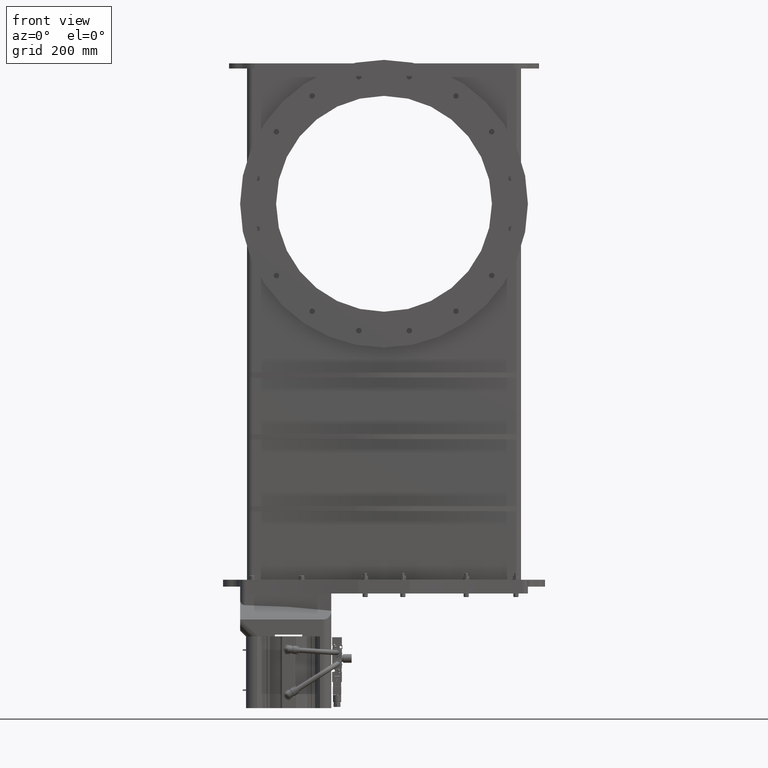
[diagram: clean part render]
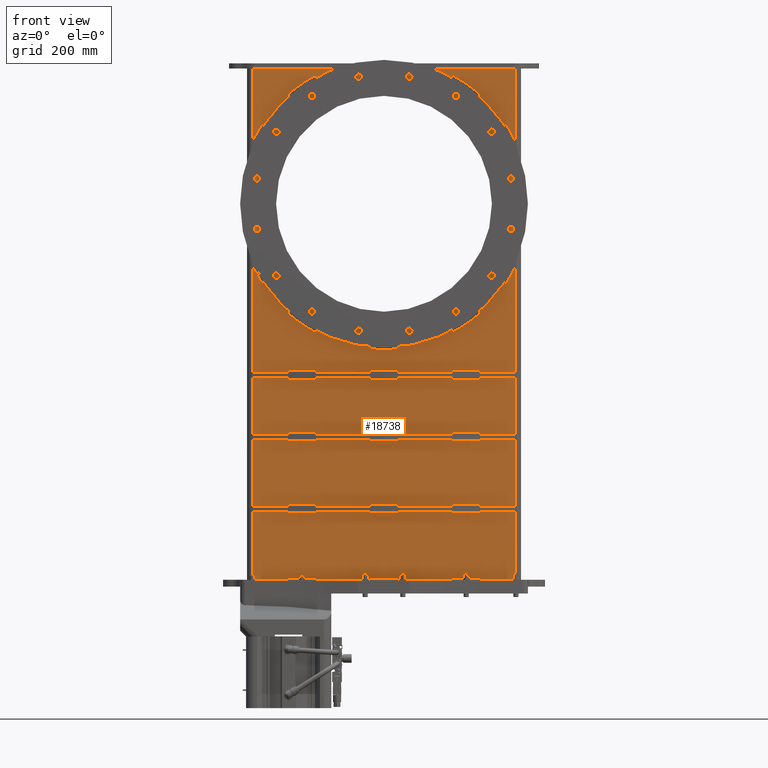
[diagram: same view with one face highlighted and labeled with its STEP entity id]
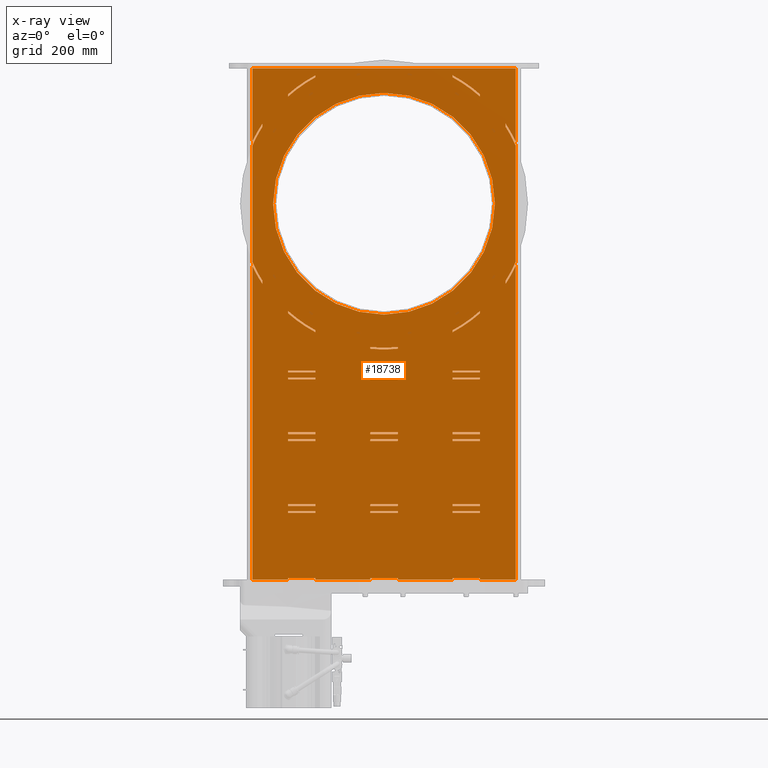
[diagram: x-ray of the same camera — body ghosted, the highlighted face saturated]
A machine part, front view. The second image highlights one B-rep face of the part: STEP entity #18738.
The next image is the same camera in x-ray: the body ghosted, the highlighted face saturated — about 0% of this face is hidden behind the body in this view.
In plain terms, the highlighted planar face has unit normal (0, 1, 0).
Its self-contained STEP definition (entity closure, byte-faithful):
#56 = CARTESIAN_POINT ( 'NONE',  ( 5.000000000000043500, -77.03351309069574900, 20.08932794774445400 ) ) ;
#61 = CARTESIAN_POINT ( 'NONE',  ( -4.999999999999964500, -77.03351309069572000, 10.33932794774445400 ) ) ;
#174 = VERTEX_POINT ( 'NONE', #34033 ) ;
#231 = LINE ( 'NONE', #10712, #46530 ) ;
#365 = CARTESIAN_POINT ( 'NONE',  ( 1.000000000000051500, -77.03351309069574900, 15.08571211398606900 ) ) ;
#573 = ORIENTED_EDGE ( 'NONE', *, *, #53078, .F. ) ;
#585 = DIRECTION ( 'NONE',  ( 0.0000000000000000000, 0.0000000000000000000, 1.000000000000000000 ) ) ;
#656 = AXIS2_PLACEMENT_3D ( 'NONE', #1990, #35969, #31251 ) ;
#751 = EDGE_CURVE ( 'NONE', #60319, #26721, #29981, .T. ) ;
#792 = DIRECTION ( 'NONE',  ( 0.0000000000000000000, 0.0000000000000000000, -1.000000000000000000 ) ) ;
#816 = ORIENTED_EDGE ( 'NONE', *, *, #28844, .F. ) ;
#870 = CIRCLE ( 'NONE', #58469, 10.49999999999999800 ) ;
#906 = VERTEX_POINT ( 'NONE', #34797 ) ;
#913 = CARTESIAN_POINT ( 'NONE',  ( -6.999999999999922700, -77.03351309069572000, 19.58571211398606900 ) ) ;
#961 = ORIENTED_EDGE ( 'NONE', *, *, #38073, .F. ) ;
#1023 = CARTESIAN_POINT ( 'NONE',  ( 5.000000000000045300, -77.03351309069574900, 15.71932794774445700 ) ) ;
#1191 = ORIENTED_EDGE ( 'NONE', *, *, #53381, .F. ) ;
#1235 = ORIENTED_EDGE ( 'NONE', *, *, #31077, .F. ) ;
#1287 = VECTOR ( 'NONE', #44358, 39.37007874015748100 ) ;
#1325 = LINE ( 'NONE', #15037, #27905 ) ;
#1413 = CARTESIAN_POINT ( 'NONE',  ( -4.999999999999964500, -77.03351309069572000, 10.33932794774445400 ) ) ;
#1460 = DIRECTION ( 'NONE',  ( 0.0000000000000000000, 0.0000000000000000000, 1.000000000000000000 ) ) ;
#1470 = DIRECTION ( 'NONE',  ( 0.0000000000000000000, 0.0000000000000000000, 1.000000000000000000 ) ) ;
#1627 = DIRECTION ( 'NONE',  ( 0.0000000000000000000, 0.0000000000000000000, 1.000000000000000000 ) ) ;
#1669 = VERTEX_POINT ( 'NONE', #62316 ) ;
#1686 = DIRECTION ( 'NONE',  ( 0.0000000000000000000, 0.0000000000000000000, -1.000000000000000000 ) ) ;
#1689 = VERTEX_POINT ( 'NONE', #62098 ) ;
#1714 = CARTESIAN_POINT ( 'NONE',  ( -6.999999999999963600, -77.03351309069572000, 20.21932794774445300 ) ) ;
#1837 = ORIENTED_EDGE ( 'NONE', *, *, #60282, .F. ) ;
#1845 = EDGE_CURVE ( 'NONE', #55152, #906, #29121, .T. ) ;
#1847 = EDGE_LOOP ( 'NONE', ( #53982, #27544, #53733, #3866 ) ) ;
#1988 = DIRECTION ( 'NONE',  ( -1.456985596620939600E-015, -1.000000000000000000, 0.0000000000000000000 ) ) ;
#1990 = CARTESIAN_POINT ( 'NONE',  ( 3.899334296918346800E-014, -77.03351309069573500, 32.40182794774445100 ) ) ;
#2124 = LINE ( 'NONE', #38000, #41624 ) ;
#2177 = VECTOR ( 'NONE', #37390, 39.37007874015748100 ) ;
#2303 = ORIENTED_EDGE ( 'NONE', *, *, #35615, .F. ) ;
#2315 = VECTOR ( 'NONE', #46812, 39.37007874015748100 ) ;
#2449 = CARTESIAN_POINT ( 'NONE',  ( -0.9999999999999483700, -77.03351309069573500, 15.08571211398606900 ) ) ;
#2568 = VECTOR ( 'NONE', #10628, 39.37007874015748100 ) ;
#2664 = CARTESIAN_POINT ( 'NONE',  ( 1.000000000000027500, -77.03351309069574900, 10.33932794774445400 ) ) ;
#2672 = ORIENTED_EDGE ( 'NONE', *, *, #61896, .F. ) ;
#2690 = CARTESIAN_POINT ( 'NONE',  ( 7.000000000000091500, -77.03351309069574900, 19.58571211398606900 ) ) ;
#2711 = CARTESIAN_POINT ( 'NONE',  ( 1.000000000000027500, -77.03351309069574900, 4.964327947744453500 ) ) ;
#2739 = EDGE_LOOP ( 'NONE', ( #53138, #18006, #12808, #16369 ) ) ;
#2930 = CARTESIAN_POINT ( 'NONE',  ( 3.899334296918346800E-014, -77.03351309069573500, 32.40182794774445100 ) ) ;
#3039 = CARTESIAN_POINT ( 'NONE',  ( 7.000000000000044400, -77.03351309069574900, 40.39498908711853900 ) ) ;
#3173 = DIRECTION ( 'NONE',  ( 0.0000000000000000000, 0.0000000000000000000, 1.000000000000000000 ) ) ;
#3303 = CARTESIAN_POINT ( 'NONE',  ( 1.000000000000051500, -77.03351309069574900, 15.08571211398606900 ) ) ;
#3328 = FACE_BOUND ( 'NONE', #28764, .T. ) ;
#3350 = DIRECTION ( 'NONE',  ( -1.456985596620939600E-015, -1.000000000000000000, 0.0000000000000000000 ) ) ;
#3403 = CARTESIAN_POINT ( 'NONE',  ( -6.999999999999922700, -77.03351309069572000, 19.58571211398606900 ) ) ;
#3469 = VERTEX_POINT ( 'NONE', #59246 ) ;
#3516 = LINE ( 'NONE', #18989, #44525 ) ;
#3524 = EDGE_CURVE ( 'NONE', #42599, #31775, #56955, .T. ) ;
#3743 = VERTEX_POINT ( 'NONE', #2449 ) ;
#3798 = EDGE_CURVE ( 'NONE', #60230, #56627, #21904, .T. ) ;
#3866 = ORIENTED_EDGE ( 'NONE', *, *, #17975, .F. ) ;
#3894 = EDGE_CURVE ( 'NONE', #5157, #48546, #47743, .T. ) ;
#3972 = ORIENTED_EDGE ( 'NONE', *, *, #15308, .F. ) ;
#3973 = VECTOR ( 'NONE', #20512, 39.37007874015748100 ) ;
#3989 = CARTESIAN_POINT ( 'NONE',  ( 3.899334296918346800E-014, -77.03351309069573500, 32.40182794774445100 ) ) ;
#3993 = AXIS2_PLACEMENT_3D ( 'NONE', #3989, #3350, #62256 ) ;
#4081 = FACE_BOUND ( 'NONE', #57427, .T. ) ;
#4113 = ORIENTED_EDGE ( 'NONE', *, *, #7845, .T. ) ;
#4153 = VERTEX_POINT ( 'NONE', #29823 ) ;
#4204 = CARTESIAN_POINT ( 'NONE',  ( 9.612500000000039800, -77.03351309069574900, 42.27682794774445800 ) ) ;
#4545 = CARTESIAN_POINT ( 'NONE',  ( 8.875000000000039100, -77.03351309069574900, 23.62057794774445400 ) ) ;
#4564 = CARTESIAN_POINT ( 'NONE',  ( -0.9999999999999483700, -77.03351309069573500, 15.21432794774445400 ) ) ;
#4612 = LINE ( 'NONE', #9472, #31211 ) ;
#4676 = EDGE_CURVE ( 'NONE', #51337, #5157, #17231, .T. ) ;
#4711 = EDGE_LOOP ( 'NONE', ( #26494, #5885, #45250, #45830 ) ) ;
#4749 = CARTESIAN_POINT ( 'NONE',  ( -0.9999999999999725800, -77.03351309069573500, 21.94955546756102300 ) ) ;
#4760 = EDGE_CURVE ( 'NONE', #54432, #19025, #33214, .T. ) ;
#4803 = LINE ( 'NONE', #39836, #54213 ) ;
#4833 = LINE ( 'NONE', #41589, #9439 ) ;
#4871 = DIRECTION ( 'NONE',  ( -1.000000000000000000, 1.456985596620939600E-015, 0.0000000000000000000 ) ) ;
#5121 = DIRECTION ( 'NONE',  ( 0.0000000000000000000, 0.0000000000000000000, 1.000000000000000000 ) ) ;
#5138 = CARTESIAN_POINT ( 'NONE',  ( 5.000000000000090600, -77.03351309069574900, 19.58571211398606900 ) ) ;
#5147 = CARTESIAN_POINT ( 'NONE',  ( -6.999999999999963600, -77.03351309069572000, 10.46932794774445500 ) ) ;
#5157 = VERTEX_POINT ( 'NONE', #22469 ) ;
#5176 = AXIS2_PLACEMENT_3D ( 'NONE', #20147, #29698, #585 ) ;
#5191 = VERTEX_POINT ( 'NONE', #33464 ) ;
#5270 = LINE ( 'NONE', #40548, #9074 ) ;
#5346 = DIRECTION ( 'NONE',  ( 8.496148300982288900E-015, -1.237876570128666200E-029, -1.000000000000000000 ) ) ;
#5395 = LINE ( 'NONE', #14169, #29744 ) ;
#5399 = CARTESIAN_POINT ( 'NONE',  ( 3.899334296918346800E-014, -77.03351309069573500, 32.40182794774445100 ) ) ;
#5432 = DIRECTION ( 'NONE',  ( 1.000000000000000000, -1.456985596620939600E-015, -0.0000000000000000000 ) ) ;
#5521 = CIRCLE ( 'NONE', #16456, 10.49999999999999800 ) ;
#5580 = FACE_BOUND ( 'NONE', #53805, .T. ) ;
#5723 = DIRECTION ( 'NONE',  ( -1.000000000000000000, 1.456985596620939600E-015, 0.0000000000000000000 ) ) ;
#5783 = VECTOR ( 'NONE', #36868, 39.37007874015748100 ) ;
#5793 = CARTESIAN_POINT ( 'NONE',  ( -6.999999999999963600, -77.03351309069572000, 24.57559002649519200 ) ) ;
#5806 = VERTEX_POINT ( 'NONE', #29815 ) ;
#5878 = CARTESIAN_POINT ( 'NONE',  ( -6.999999999999963600, -77.03351309069572000, 15.71932794774445700 ) ) ;
#5885 = ORIENTED_EDGE ( 'NONE', *, *, #46876, .F. ) ;
#5908 = VERTEX_POINT ( 'NONE', #40003 ) ;
#5924 = CARTESIAN_POINT ( 'NONE',  ( -6.999999999999963600, -77.03351309069572000, 23.62057794774445400 ) ) ;
#5925 = DIRECTION ( 'NONE',  ( -1.000000000000000000, 1.456985596620939600E-015, 0.0000000000000000000 ) ) ;
#6006 = EDGE_CURVE ( 'NONE', #34628, #4153, #23543, .T. ) ;
#6065 = VECTOR ( 'NONE', #57676, 39.37007874015748100 ) ;
#6112 = ORIENTED_EDGE ( 'NONE', *, *, #10487, .F. ) ;
#6186 = LINE ( 'NONE', #49621, #3973 ) ;
#6241 = LINE ( 'NONE', #14960, #16926 ) ;
#6289 = VECTOR ( 'NONE', #42102, 39.37007874015748100 ) ;
#6294 = ORIENTED_EDGE ( 'NONE', *, *, #22026, .T. ) ;
#6322 = ORIENTED_EDGE ( 'NONE', *, *, #52951, .F. ) ;
#6326 = DIRECTION ( 'NONE',  ( 0.0000000000000000000, 0.0000000000000000000, 1.000000000000000000 ) ) ;
#6350 = FACE_BOUND ( 'NONE', #61754, .T. ) ;
#6412 = CARTESIAN_POINT ( 'NONE',  ( -8.874999999999962700, -77.03351309069572000, 38.24348867051841000 ) ) ;
#6493 = ORIENTED_EDGE ( 'NONE', *, *, #3798, .F. ) ;
#6596 = LINE ( 'NONE', #3303, #34727 ) ;
#6632 = CARTESIAN_POINT ( 'NONE',  ( 7.000000000000043500, -77.03351309069574900, 15.58932794774445400 ) ) ;
#6675 = VERTEX_POINT ( 'NONE', #28778 ) ;
#6740 = DIRECTION ( 'NONE',  ( -1.000000000000000000, 1.456985596620939600E-015, 0.0000000000000000000 ) ) ;
#6775 = VECTOR ( 'NONE', #1460, 39.37007874015748100 ) ;
#6798 = CARTESIAN_POINT ( 'NONE',  ( -0.9999999999999725800, -77.03351309069573500, 10.33932794774445400 ) ) ;
#6841 = LINE ( 'NONE', #20492, #26627 ) ;
#6971 = LINE ( 'NONE', #10777, #22202 ) ;
#6993 = EDGE_CURVE ( 'NONE', #60336, #39404, #27298, .T. ) ;
#7000 = VECTOR ( 'NONE', #62347, 39.37007874015748100 ) ;
#7136 = VECTOR ( 'NONE', #28666, 39.37007874015748100 ) ;
#7214 = CARTESIAN_POINT ( 'NONE',  ( 5.000000000000090600, -77.03351309069574900, 19.58571211398606900 ) ) ;
#7251 = CIRCLE ( 'NONE', #47459, 10.49999999999999800 ) ;
#7342 = ORIENTED_EDGE ( 'NONE', *, *, #42997, .F. ) ;
#7393 = VERTEX_POINT ( 'NONE', #47978 ) ;
#7439 = EDGE_CURVE ( 'NONE', #29105, #53449, #23346, .T. ) ;
#7494 = VERTEX_POINT ( 'NONE', #365 ) ;
#7573 = LINE ( 'NONE', #12594, #10675 ) ;
#7739 = CIRCLE ( 'NONE', #3993, 10.62500000000000400 ) ;
#7753 = DIRECTION ( 'NONE',  ( 1.000000000000000000, -1.456985596620939600E-015, -0.0000000000000000000 ) ) ;
#7784 = ORIENTED_EDGE ( 'NONE', *, *, #53460, .F. ) ;
#7790 = DIRECTION ( 'NONE',  ( 0.0000000000000000000, 0.0000000000000000000, 1.000000000000000000 ) ) ;
#7833 = EDGE_CURVE ( 'NONE', #9889, #58464, #8802, .T. ) ;
#7845 = EDGE_CURVE ( 'NONE', #34665, #26721, #7251, .T. ) ;
#7898 = CARTESIAN_POINT ( 'NONE',  ( 7.000000000000091500, -77.03351309069574900, 15.08571211398606900 ) ) ;
#7943 = CARTESIAN_POINT ( 'NONE',  ( -4.999999999999964500, -77.03351309069572000, 15.58932794774445400 ) ) ;
#8016 = VECTOR ( 'NONE', #58651, 39.37007874015748100 ) ;
#8157 = CARTESIAN_POINT ( 'NONE',  ( -9.612499999999958100, -77.03351309069572000, 36.62673549111153200 ) ) ;
#8186 = LINE ( 'NONE', #23771, #26442 ) ;
#8249 = VERTEX_POINT ( 'NONE', #37789 ) ;
#8255 = AXIS2_PLACEMENT_3D ( 'NONE', #49851, #30296, #44919 ) ;
#8267 = CARTESIAN_POINT ( 'NONE',  ( 7.000000000000043500, -77.03351309069574900, 4.964327947744453500 ) ) ;
#8309 = CARTESIAN_POINT ( 'NONE',  ( -6.999999999999924500, -77.03351309069572000, 19.71432794774445400 ) ) ;
#8311 = VERTEX_POINT ( 'NONE', #43081 ) ;
#8330 = CARTESIAN_POINT ( 'NONE',  ( 7.000000000000091500, -77.03351309069574900, 19.71432794774445400 ) ) ;
#8339 = EDGE_CURVE ( 'NONE', #37994, #55152, #24679, .T. ) ;
#8397 = DIRECTION ( 'NONE',  ( 0.0000000000000000000, 0.0000000000000000000, 1.000000000000000000 ) ) ;
#8728 = ORIENTED_EDGE ( 'NONE', *, *, #33298, .F. ) ;
#8737 = ORIENTED_EDGE ( 'NONE', *, *, #45805, .F. ) ;
#8802 = CIRCLE ( 'NONE', #42151, 10.62500000000000400 ) ;
#8865 = DIRECTION ( 'NONE',  ( -1.000000000000000000, 1.456985596620939600E-015, 0.0000000000000000000 ) ) ;
#8912 = ORIENTED_EDGE ( 'NONE', *, *, #24326, .F. ) ;
#8959 = CARTESIAN_POINT ( 'NONE',  ( 9.612500000000039800, -77.03351309069574900, 4.964327947744453500 ) ) ;
#9049 = EDGE_CURVE ( 'NONE', #29171, #19052, #15517, .T. ) ;
#9074 = VECTOR ( 'NONE', #6326, 39.37007874015748100 ) ;
#9088 = ORIENTED_EDGE ( 'NONE', *, *, #55636, .T. ) ;
#9200 = VERTEX_POINT ( 'NONE', #36781 ) ;
#9274 = LINE ( 'NONE', #25783, #21452 ) ;
#9439 = VECTOR ( 'NONE', #40953, 39.37007874015748100 ) ;
#9472 = CARTESIAN_POINT ( 'NONE',  ( 1.000000000000051500, -77.03351309069574900, 9.964327947744454400 ) ) ;
#9666 = LINE ( 'NONE', #4545, #59854 ) ;
#9694 = EDGE_CURVE ( 'NONE', #11478, #15771, #23848, .T. ) ;
#9695 = DIRECTION ( 'NONE',  ( 0.0000000000000000000, 0.0000000000000000000, 1.000000000000000000 ) ) ;
#9704 = VECTOR ( 'NONE', #43083, 39.37007874015748100 ) ;
#9878 = CARTESIAN_POINT ( 'NONE',  ( -6.999999999999963600, -77.03351309069572000, 15.58932794774445400 ) ) ;
#9880 = CARTESIAN_POINT ( 'NONE',  ( -0.9999999999999725800, -77.03351309069573500, 10.46932794774445500 ) ) ;
#9889 = VERTEX_POINT ( 'NONE', #22933 ) ;
#9898 = CARTESIAN_POINT ( 'NONE',  ( 7.000000000000091500, -77.03351309069574900, 19.58571211398606900 ) ) ;
#9957 = ORIENTED_EDGE ( 'NONE', *, *, #43970, .F. ) ;
#9995 = LINE ( 'NONE', #19140, #27469 ) ;
#10007 = VERTEX_POINT ( 'NONE', #29099 ) ;
#10026 = VECTOR ( 'NONE', #49996, 39.37007874015748100 ) ;
#10123 = VECTOR ( 'NONE', #20596, 39.37007874015748100 ) ;
#10166 = EDGE_CURVE ( 'NONE', #58464, #21270, #30534, .T. ) ;
#10266 = CARTESIAN_POINT ( 'NONE',  ( 7.000000000000043500, -77.03351309069574900, 15.58932794774445400 ) ) ;
#10306 = VECTOR ( 'NONE', #62365, 39.37007874015748100 ) ;
#10377 = VECTOR ( 'NONE', #36806, 39.37007874015748100 ) ;
#10423 = ORIENTED_EDGE ( 'NONE', *, *, #44418, .F. ) ;
#10436 = EDGE_CURVE ( 'NONE', #46337, #33227, #7739, .T. ) ;
#10442 = CARTESIAN_POINT ( 'NONE',  ( 3.899334296918346800E-014, -77.03351309069573500, 32.40182794774445100 ) ) ;
#10487 = EDGE_CURVE ( 'NONE', #37568, #29171, #41169, .T. ) ;
#10564 = ORIENTED_EDGE ( 'NONE', *, *, #37599, .F. ) ;
#10585 = CARTESIAN_POINT ( 'NONE',  ( -0.9999999999999725800, -77.03351309069573500, 4.964327947744453500 ) ) ;
#10622 = DIRECTION ( 'NONE',  ( 0.0000000000000000000, 0.0000000000000000000, 1.000000000000000000 ) ) ;
#10628 = DIRECTION ( 'NONE',  ( 0.0000000000000000000, 0.0000000000000000000, -1.000000000000000000 ) ) ;
#10675 = VECTOR ( 'NONE', #46541, 39.37007874015748100 ) ;
#10706 = EDGE_LOOP ( 'NONE', ( #28077, #6112, #46899, #19752 ) ) ;
#10712 = CARTESIAN_POINT ( 'NONE',  ( 1.000000000000051500, -77.03351309069574900, 19.71432794774445400 ) ) ;
#10732 = VERTEX_POINT ( 'NONE', #56767 ) ;
#10753 = VERTEX_POINT ( 'NONE', #62319 ) ;
#10777 = CARTESIAN_POINT ( 'NONE',  ( -9.612499999999961600, -77.03351309069572000, 42.27682794774445800 ) ) ;
#10882 = EDGE_CURVE ( 'NONE', #50917, #14590, #9995, .T. ) ;
#10919 = FACE_BOUND ( 'NONE', #31239, .T. ) ;
#10934 = CARTESIAN_POINT ( 'NONE',  ( -4.999999999999923600, -77.03351309069572000, 9.835712113986071300 ) ) ;
#10938 = CARTESIAN_POINT ( 'NONE',  ( 7.000000000000091500, -77.03351309069574900, 19.58571211398606900 ) ) ;
#10944 = CARTESIAN_POINT ( 'NONE',  ( -0.9999999999999725800, -77.03351309069573500, 20.08932794774445400 ) ) ;
#11014 = EDGE_CURVE ( 'NONE', #7393, #5191, #34897, .T. ) ;
#11040 = VECTOR ( 'NONE', #55986, 39.37007874015748100 ) ;
#11210 = DIRECTION ( 'NONE',  ( -1.456985596620939600E-015, -1.000000000000000000, 0.0000000000000000000 ) ) ;
#11288 = VERTEX_POINT ( 'NONE', #18431 ) ;
#11393 = EDGE_CURVE ( 'NONE', #54148, #43188, #8186, .T. ) ;
#11412 = ORIENTED_EDGE ( 'NONE', *, *, #17267, .F. ) ;
#11419 = LINE ( 'NONE', #5924, #53203 ) ;
#11452 = CARTESIAN_POINT ( 'NONE',  ( -6.999999999999922700, -77.03351309069572000, 9.835712113986071300 ) ) ;
#11478 = VERTEX_POINT ( 'NONE', #47963 ) ;
#11612 = VERTEX_POINT ( 'NONE', #30665 ) ;
#11642 = ORIENTED_EDGE ( 'NONE', *, *, #49737, .F. ) ;
#11735 = ORIENTED_EDGE ( 'NONE', *, *, #9694, .F. ) ;
#11757 = ORIENTED_EDGE ( 'NONE', *, *, #27202, .T. ) ;
#11790 = ORIENTED_EDGE ( 'NONE', *, *, #52828, .F. ) ;
#11990 = CARTESIAN_POINT ( 'NONE',  ( -6.999999999999963600, -77.03351309069572000, 23.62057794774445400 ) ) ;
#12028 = CARTESIAN_POINT ( 'NONE',  ( 7.000000000000091500, -77.03351309069574900, 15.21432794774445400 ) ) ;
#12029 = VECTOR ( 'NONE', #46283, 39.37007874015748100 ) ;
#12176 = EDGE_CURVE ( 'NONE', #37622, #25343, #3516, .T. ) ;
#12237 = ORIENTED_EDGE ( 'NONE', *, *, #28382, .F. ) ;
#12407 = ORIENTED_EDGE ( 'NONE', *, *, #35336, .T. ) ;
#12437 = FACE_BOUND ( 'NONE', #23872, .T. ) ;
#12476 = VERTEX_POINT ( 'NONE', #23200 ) ;
#12514 = VECTOR ( 'NONE', #50865, 39.37007874015748100 ) ;
#12594 = CARTESIAN_POINT ( 'NONE',  ( -0.9999999999999725800, -77.03351309069573500, 15.58932794774445400 ) ) ;
#12646 = EDGE_CURVE ( 'NONE', #14036, #10753, #62034, .T. ) ;
#12808 = ORIENTED_EDGE ( 'NONE', *, *, #56182, .F. ) ;
#12824 = ORIENTED_EDGE ( 'NONE', *, *, #33951, .F. ) ;
#12867 = LINE ( 'NONE', #15516, #30334 ) ;
#12969 = EDGE_CURVE ( 'NONE', #43146, #27204, #14054, .T. ) ;
#13090 = VECTOR ( 'NONE', #38001, 39.37007874015748100 ) ;
#13106 = CIRCLE ( 'NONE', #46606, 10.49999999999999800 ) ;
#13145 = ORIENTED_EDGE ( 'NONE', *, *, #7833, .F. ) ;
#13176 = CARTESIAN_POINT ( 'NONE',  ( 3.899334296918346800E-014, -77.03351309069573500, 32.40182794774445100 ) ) ;
#13186 = EDGE_CURVE ( 'NONE', #40708, #6675, #45107, .T. ) ;
#13229 = LINE ( 'NONE', #6632, #29187 ) ;
#13327 = CIRCLE ( 'NONE', #45734, 10.62500000000000400 ) ;
#13522 = CARTESIAN_POINT ( 'NONE',  ( -6.999999999999924500, -77.03351309069572000, 15.21432794774445400 ) ) ;
#13545 = DIRECTION ( 'NONE',  ( 0.0000000000000000000, 0.0000000000000000000, 1.000000000000000000 ) ) ;
#13552 = ORIENTED_EDGE ( 'NONE', *, *, #48560, .F. ) ;
#13610 = DIRECTION ( 'NONE',  ( -1.000000000000000000, 1.080582642734937200E-015, 0.0000000000000000000 ) ) ;
#13670 = CARTESIAN_POINT ( 'NONE',  ( 7.000000000000043500, -77.03351309069574900, 23.62057794774445400 ) ) ;
#13713 = CARTESIAN_POINT ( 'NONE',  ( -0.9999999999999688000, -77.03351309069573500, 23.62057794774445400 ) ) ;
#13733 = ORIENTED_EDGE ( 'NONE', *, *, #57913, .T. ) ;
#13800 = EDGE_CURVE ( 'NONE', #31329, #57316, #55650, .T. ) ;
#13882 = EDGE_CURVE ( 'NONE', #41990, #41199, #9274, .T. ) ;
#14036 = VERTEX_POINT ( 'NONE', #21758 ) ;
#14054 = LINE ( 'NONE', #8330, #60428 ) ;
#14169 = CARTESIAN_POINT ( 'NONE',  ( 1.000000000000027500, -77.03351309069574900, 5.094327947744455200 ) ) ;
#14363 = CARTESIAN_POINT ( 'NONE',  ( 5.000000000000045300, -77.03351309069574900, 10.46932794774445500 ) ) ;
#14401 = DIRECTION ( 'NONE',  ( -1.456985596620939600E-015, -1.000000000000000000, 0.0000000000000000000 ) ) ;
#14406 = CARTESIAN_POINT ( 'NONE',  ( -0.9999999999999483700, -77.03351309069573500, 9.835712113986071300 ) ) ;
#14409 = EDGE_CURVE ( 'NONE', #16294, #34340, #11419, .T. ) ;
#14590 = VERTEX_POINT ( 'NONE', #22518 ) ;
#14602 = DIRECTION ( 'NONE',  ( 0.0000000000000000000, 0.0000000000000000000, -1.000000000000000000 ) ) ;
#14630 = ORIENTED_EDGE ( 'NONE', *, *, #33647, .F. ) ;
#14921 = VECTOR ( 'NONE', #45626, 39.37007874015748100 ) ;
#14960 = CARTESIAN_POINT ( 'NONE',  ( 7.000000000000043500, -77.03351309069574900, 20.08932794774445400 ) ) ;
#14976 = VERTEX_POINT ( 'NONE', #63115 ) ;
#14984 = DIRECTION ( 'NONE',  ( 0.0000000000000000000, 0.0000000000000000000, 1.000000000000000000 ) ) ;
#14986 = ORIENTED_EDGE ( 'NONE', *, *, #29081, .F. ) ;
#15037 = CARTESIAN_POINT ( 'NONE',  ( -6.999999999999963600, -77.03351309069572000, 5.094327947744455200 ) ) ;
#15160 = ORIENTED_EDGE ( 'NONE', *, *, #21618, .F. ) ;
#15302 = VECTOR ( 'NONE', #60718, 39.37007874015748100 ) ;
#15308 = EDGE_CURVE ( 'NONE', #59889, #52056, #38042, .T. ) ;
#15316 = ORIENTED_EDGE ( 'NONE', *, *, #27921, .T. ) ;
#15319 = CARTESIAN_POINT ( 'NONE',  ( -0.9999999999999483700, -77.03351309069573500, 19.71432794774445400 ) ) ;
#15331 = CARTESIAN_POINT ( 'NONE',  ( 7.000000000000091500, -77.03351309069574900, 19.71432794774445800 ) ) ;
#15483 = AXIS2_PLACEMENT_3D ( 'NONE', #32917, #56754, #46947 ) ;
#15498 = LINE ( 'NONE', #49491, #2568 ) ;
#15516 = CARTESIAN_POINT ( 'NONE',  ( 5.000000000000090600, -77.03351309069574900, 9.835712113986071300 ) ) ;
#15517 = LINE ( 'NONE', #49359, #32169 ) ;
#15576 = EDGE_CURVE ( 'NONE', #18557, #33688, #1325, .T. ) ;
#15678 = VECTOR ( 'NONE', #26179, 39.37007874015748100 ) ;
#15717 = EDGE_LOOP ( 'NONE', ( #33484, #13733, #61119, #6322 ) ) ;
#15771 = VERTEX_POINT ( 'NONE', #50892 ) ;
#15874 = CARTESIAN_POINT ( 'NONE',  ( 5.000000000000043500, -77.03351309069574900, 10.33932794774445400 ) ) ;
#15893 = ORIENTED_EDGE ( 'NONE', *, *, #37050, .F. ) ;
#16102 = LINE ( 'NONE', #7898, #42838 ) ;
#16200 = LINE ( 'NONE', #11990, #62616 ) ;
#16249 = CARTESIAN_POINT ( 'NONE',  ( 1.000000000000027500, -77.03351309069574900, 20.08932794774445400 ) ) ;
#16290 = LINE ( 'NONE', #29950, #46713 ) ;
#16294 = VERTEX_POINT ( 'NONE', #41072 ) ;
#16295 = LINE ( 'NONE', #10934, #52044 ) ;
#16327 = EDGE_CURVE ( 'NONE', #16572, #28323, #24818, .T. ) ;
#16369 = ORIENTED_EDGE ( 'NONE', *, *, #31355, .F. ) ;
#16378 = DIRECTION ( 'NONE',  ( 1.000000000000000000, -1.456985596620939600E-015, -0.0000000000000000000 ) ) ;
#16401 = ORIENTED_EDGE ( 'NONE', *, *, #41757, .F. ) ;
#16411 = ORIENTED_EDGE ( 'NONE', *, *, #24350, .F. ) ;
#16456 = AXIS2_PLACEMENT_3D ( 'NONE', #40289, #30695, #1627 ) ;
#16572 = VERTEX_POINT ( 'NONE', #52898 ) ;
#16617 = CARTESIAN_POINT ( 'NONE',  ( 7.000000000000043500, -77.03351309069574900, 20.21932794774445300 ) ) ;
#16673 = DIRECTION ( 'NONE',  ( 1.000000000000000000, -1.456985596620939600E-015, -0.0000000000000000000 ) ) ;
#16693 = VERTEX_POINT ( 'NONE', #1023 ) ;
#16702 = CARTESIAN_POINT ( 'NONE',  ( -0.9999999999999725800, -77.03351309069573500, 4.964327947744453500 ) ) ;
#16799 = VERTEX_POINT ( 'NONE', #60085 ) ;
#16800 = LINE ( 'NONE', #16702, #26681 ) ;
#16810 = AXIS2_PLACEMENT_3D ( 'NONE', #19798, #53375, #5121 ) ;
#16906 = CARTESIAN_POINT ( 'NONE',  ( -4.999999999999923600, -77.03351309069572000, 19.58571211398606900 ) ) ;
#16926 = VECTOR ( 'NONE', #58128, 39.37007874015748100 ) ;
#17169 = VERTEX_POINT ( 'NONE', #6412 ) ;
#17231 = LINE ( 'NONE', #43541, #46112 ) ;
#17267 = EDGE_CURVE ( 'NONE', #25343, #50917, #16295, .T. ) ;
#17299 = CIRCLE ( 'NONE', #58004, 10.49999999999999800 ) ;
#17304 = DIRECTION ( 'NONE',  ( 1.000000000000000000, -1.456985596620939600E-015, -0.0000000000000000000 ) ) ;
#17370 = CARTESIAN_POINT ( 'NONE',  ( -6.999999999999963600, -77.03351309069572000, 5.094327947744455200 ) ) ;
#17429 = DIRECTION ( 'NONE',  ( 0.0000000000000000000, 0.0000000000000000000, -1.000000000000000000 ) ) ;
#17541 = ORIENTED_EDGE ( 'NONE', *, *, #26495, .T. ) ;
#17737 = CARTESIAN_POINT ( 'NONE',  ( -6.999999999999963600, -77.03351309069572000, 40.39498908711853900 ) ) ;
#17798 = DIRECTION ( 'NONE',  ( -1.456985596620939600E-015, -1.000000000000000000, 0.0000000000000000000 ) ) ;
#17840 = VECTOR ( 'NONE', #35500, 39.37007874015748100 ) ;
#17852 = LINE ( 'NONE', #16249, #25484 ) ;
#17940 = DIRECTION ( 'NONE',  ( -1.000000000000000000, 1.456985596620939600E-015, 0.0000000000000000000 ) ) ;
#17951 = AXIS2_PLACEMENT_3D ( 'NONE', #62218, #52616, #13545 ) ;
#17975 = EDGE_CURVE ( 'NONE', #31775, #60336, #42851, .T. ) ;
#18006 = ORIENTED_EDGE ( 'NONE', *, *, #13186, .F. ) ;
#18025 = LINE ( 'NONE', #9898, #22624 ) ;
#18115 = CARTESIAN_POINT ( 'NONE',  ( -4.999999999999922700, -77.03351309069572000, 15.21432794774445300 ) ) ;
#18122 = CARTESIAN_POINT ( 'NONE',  ( -4.999999999999964500, -77.03351309069572000, 15.71932794774445300 ) ) ;
#18180 = CARTESIAN_POINT ( 'NONE',  ( 5.000000000000090600, -77.03351309069574900, 15.08571211398606900 ) ) ;
#18431 = CARTESIAN_POINT ( 'NONE',  ( 1.000000000000051500, -77.03351309069574900, 19.58571211398606900 ) ) ;
#18501 = ORIENTED_EDGE ( 'NONE', *, *, #48571, .F. ) ;
#18533 = FACE_BOUND ( 'NONE', #59879, .T. ) ;
#18557 = VERTEX_POINT ( 'NONE', #17370 ) ;
#18596 = DIRECTION ( 'NONE',  ( 1.000000000000000000, -1.456985596620939600E-015, -0.0000000000000000000 ) ) ;
#18699 = ORIENTED_EDGE ( 'NONE', *, *, #34948, .T. ) ;
#18738 = ADVANCED_FACE ( 'NONE', ( #3328, #49677, #61110, #57317, #4081, #6350, #43579, #36011, #48166, #30608, #62660, #23126, #12437, #18533, #52743, #10919, #19265, #31387, #20784, #5580, #46601, #36729, #58863, #59573, #45855 ), #42884, .F. ) ;
#18826 = ORIENTED_EDGE ( 'NONE', *, *, #1845, .T. ) ;
#18834 = LINE ( 'NONE', #42451, #9704 ) ;
#18989 = CARTESIAN_POINT ( 'NONE',  ( -4.999999999999923600, -77.03351309069572000, 9.835712113986071300 ) ) ;
#19016 = ORIENTED_EDGE ( 'NONE', *, *, #51284, .F. ) ;
#19025 = VERTEX_POINT ( 'NONE', #39081 ) ;
#19052 = VERTEX_POINT ( 'NONE', #5878 ) ;
#19140 = CARTESIAN_POINT ( 'NONE',  ( -4.999999999999923600, -77.03351309069572000, 9.964327947744454400 ) ) ;
#19244 = CARTESIAN_POINT ( 'NONE',  ( 1.000000000000051300, -77.03351309069574900, 19.71432794774445800 ) ) ;
#19246 = EDGE_CURVE ( 'NONE', #60319, #59927, #13106, .T. ) ;
#19265 = FACE_BOUND ( 'NONE', #1847, .T. ) ;
#19343 = LINE ( 'NONE', #7943, #39095 ) ;
#19382 = CARTESIAN_POINT ( 'NONE',  ( -4.999999999999923600, -77.03351309069572000, 19.71432794774445400 ) ) ;
#19386 = DIRECTION ( 'NONE',  ( 0.0000000000000000000, 0.0000000000000000000, 1.000000000000000000 ) ) ;
#19396 = DIRECTION ( 'NONE',  ( 0.0000000000000000000, 0.0000000000000000000, 1.000000000000000000 ) ) ;
#19517 = ORIENTED_EDGE ( 'NONE', *, *, #11014, .F. ) ;
#19651 = CARTESIAN_POINT ( 'NONE',  ( -4.999999999999964500, -77.03351309069572000, 20.21932794774445300 ) ) ;
#19752 = ORIENTED_EDGE ( 'NONE', *, *, #23187, .F. ) ;
#19798 = CARTESIAN_POINT ( 'NONE',  ( 3.899334296918346800E-014, -77.03351309069573500, 32.40182794774445100 ) ) ;
#19963 = DIRECTION ( 'NONE',  ( 0.0000000000000000000, 0.0000000000000000000, -1.000000000000000000 ) ) ;
#19985 = VECTOR ( 'NONE', #27746, 39.37007874015748100 ) ;
#20135 = DIRECTION ( 'NONE',  ( 0.0000000000000000000, 0.0000000000000000000, -1.000000000000000000 ) ) ;
#20147 = CARTESIAN_POINT ( 'NONE',  ( 3.899334296918346800E-014, -77.03351309069573500, 32.40182794774445100 ) ) ;
#20168 = CARTESIAN_POINT ( 'NONE',  ( -4.999999999999964500, -77.03351309069572000, 20.08932794774445400 ) ) ;
#20256 = LINE ( 'NONE', #55271, #15678 ) ;
#20351 = VECTOR ( 'NONE', #35337, 39.37007874015748100 ) ;
#20414 = DIRECTION ( 'NONE',  ( 0.0000000000000000000, 0.0000000000000000000, -1.000000000000000000 ) ) ;
#20416 = DIRECTION ( 'NONE',  ( 0.0000000000000000000, 0.0000000000000000000, 1.000000000000000000 ) ) ;
#20492 = CARTESIAN_POINT ( 'NONE',  ( 5.000000000000043500, -77.03351309069574900, 4.964327947744453500 ) ) ;
#20512 = DIRECTION ( 'NONE',  ( 1.000000000000000000, -1.456985596620939600E-015, -0.0000000000000000000 ) ) ;
#20534 = VECTOR ( 'NONE', #47031, 39.37007874015748100 ) ;
#20553 = CARTESIAN_POINT ( 'NONE',  ( -4.999999999999922700, -77.03351309069572000, 9.964327947744454400 ) ) ;
#20595 = LINE ( 'NONE', #30965, #31931 ) ;
#20596 = DIRECTION ( 'NONE',  ( 0.0000000000000000000, 0.0000000000000000000, 1.000000000000000000 ) ) ;
#20603 = CARTESIAN_POINT ( 'NONE',  ( 1.000000000000051500, -77.03351309069574900, 9.835712113986071300 ) ) ;
#20679 = LINE ( 'NONE', #49021, #57200 ) ;
#20713 = LINE ( 'NONE', #13670, #25998 ) ;
#20784 = FACE_BOUND ( 'NONE', #28567, .T. ) ;
#20813 = ORIENTED_EDGE ( 'NONE', *, *, #8339, .T. ) ;
#20909 = VECTOR ( 'NONE', #5346, 39.37007874015748100 ) ;
#20926 = CARTESIAN_POINT ( 'NONE',  ( -0.9999999999999483700, -77.03351309069573500, 9.964327947744454400 ) ) ;
#20964 = ORIENTED_EDGE ( 'NONE', *, *, #25302, .F. ) ;
#21119 = CARTESIAN_POINT ( 'NONE',  ( 3.899334296918346800E-014, -77.03351309069573500, 32.40182794774445100 ) ) ;
#21246 = EDGE_LOOP ( 'NONE', ( #12824, #31933, #20813, #18826 ) ) ;
#21270 = VERTEX_POINT ( 'NONE', #32474 ) ;
#21319 = ORIENTED_EDGE ( 'NONE', *, *, #6006, .F. ) ;
#21418 = ORIENTED_EDGE ( 'NONE', *, *, #14409, .T. ) ;
#21452 = VECTOR ( 'NONE', #50196, 39.37007874015748100 ) ;
#21576 = ORIENTED_EDGE ( 'NONE', *, *, #12176, .F. ) ;
#21618 = EDGE_CURVE ( 'NONE', #55404, #50203, #45031, .T. ) ;
#21665 = CARTESIAN_POINT ( 'NONE',  ( 9.612500000000039800, -77.03351309069574900, 42.27682794774445800 ) ) ;
#21719 = LINE ( 'NONE', #24859, #30804 ) ;
#21758 = CARTESIAN_POINT ( 'NONE',  ( -6.999999999999963600, -77.03351309069572000, 24.40866680837037400 ) ) ;
#21804 = AXIS2_PLACEMENT_3D ( 'NONE', #4204, #48588, #14602 ) ;
#21904 = LINE ( 'NONE', #12028, #52321 ) ;
#22026 = EDGE_CURVE ( 'NONE', #40610, #59423, #54181, .T. ) ;
#22131 = EDGE_CURVE ( 'NONE', #37994, #31971, #20713, .T. ) ;
#22147 = VERTEX_POINT ( 'NONE', #8309 ) ;
#22182 = LINE ( 'NONE', #61994, #29735 ) ;
#22202 = VECTOR ( 'NONE', #20135, 39.37007874015748100 ) ;
#22304 = ORIENTED_EDGE ( 'NONE', *, *, #61044, .F. ) ;
#22399 = CARTESIAN_POINT ( 'NONE',  ( -4.999999999999923600, -77.03351309069572000, 19.58571211398606900 ) ) ;
#22469 = CARTESIAN_POINT ( 'NONE',  ( -6.999999999999922700, -77.03351309069572000, 15.08571211398606900 ) ) ;
#22518 = CARTESIAN_POINT ( 'NONE',  ( -6.999999999999924500, -77.03351309069572000, 9.964327947744454400 ) ) ;
#22538 = EDGE_CURVE ( 'NONE', #6675, #16693, #20595, .T. ) ;
#22569 = LINE ( 'NONE', #43124, #46856 ) ;
#22605 = DIRECTION ( 'NONE',  ( -1.000000000000000000, 1.456985596620939600E-015, 0.0000000000000000000 ) ) ;
#22624 = VECTOR ( 'NONE', #14984, 39.37007874015748100 ) ;
#22628 = AXIS2_PLACEMENT_3D ( 'NONE', #48583, #14401, #43284 ) ;
#22780 = ORIENTED_EDGE ( 'NONE', *, *, #26317, .F. ) ;
#22792 = ORIENTED_EDGE ( 'NONE', *, *, #51515, .F. ) ;
#22933 = CARTESIAN_POINT ( 'NONE',  ( 8.875000000000039100, -77.03351309069574900, 26.56016722497049500 ) ) ;
#23110 = LINE ( 'NONE', #41516, #51982 ) ;
#23126 = FACE_BOUND ( 'NONE', #51019, .T. ) ;
#23187 = EDGE_CURVE ( 'NONE', #19052, #60748, #38043, .T. ) ;
#23200 = CARTESIAN_POINT ( 'NONE',  ( -4.999999999999922700, -77.03351309069572000, 19.71432794774445800 ) ) ;
#23315 = CARTESIAN_POINT ( 'NONE',  ( -4.999999999999923600, -77.03351309069572000, 15.08571211398606900 ) ) ;
#23346 = LINE ( 'NONE', #14406, #30894 ) ;
#23362 = CARTESIAN_POINT ( 'NONE',  ( 5.000000000000045300, -77.03351309069574900, 41.63492060405414500 ) ) ;
#23402 = VECTOR ( 'NONE', #8397, 39.37007874015748100 ) ;
#23501 = LINE ( 'NONE', #55559, #61532 ) ;
#23543 = LINE ( 'NONE', #6798, #47844 ) ;
#23653 = VERTEX_POINT ( 'NONE', #1413 ) ;
#23722 = CARTESIAN_POINT ( 'NONE',  ( 8.875000000000039100, -77.03351309069574900, 26.79073402587859200 ) ) ;
#23770 = EDGE_CURVE ( 'NONE', #53449, #7393, #22182, .T. ) ;
#23771 = CARTESIAN_POINT ( 'NONE',  ( -4.999999999999964500, -77.03351309069572000, 20.21932794774445300 ) ) ;
#23848 = LINE ( 'NONE', #55205, #38281 ) ;
#23872 = EDGE_LOOP ( 'NONE', ( #8728, #20964, #28731, #52026 ) ) ;
#24257 = VERTEX_POINT ( 'NONE', #37012 ) ;
#24300 = EDGE_CURVE ( 'NONE', #56062, #35575, #16102, .T. ) ;
#24326 = EDGE_CURVE ( 'NONE', #48331, #34477, #38219, .T. ) ;
#24347 = CARTESIAN_POINT ( 'NONE',  ( -9.612499999999961600, -77.03351309069572000, 42.27682794774445800 ) ) ;
#24350 = EDGE_CURVE ( 'NONE', #52056, #11288, #61811, .T. ) ;
#24442 = DIRECTION ( 'NONE',  ( 8.496148300982288900E-015, -1.237876570128666200E-029, -1.000000000000000000 ) ) ;
#24560 = VECTOR ( 'NONE', #50610, 39.37007874015748100 ) ;
#24590 = VECTOR ( 'NONE', #25270, 39.37007874015748100 ) ;
#24608 = EDGE_CURVE ( 'NONE', #12476, #22147, #56208, .T. ) ;
#24679 = CIRCLE ( 'NONE', #22628, 10.49999999999999800 ) ;
#24818 = LINE ( 'NONE', #55512, #10377 ) ;
#24859 = CARTESIAN_POINT ( 'NONE',  ( 7.000000000000091500, -77.03351309069574900, 9.835712113986071300 ) ) ;
#24988 = VERTEX_POINT ( 'NONE', #18115 ) ;
#25061 = CARTESIAN_POINT ( 'NONE',  ( 1.000000000000051500, -77.03351309069574900, 19.58571211398606900 ) ) ;
#25270 = DIRECTION ( 'NONE',  ( 1.000000000000000000, -1.456985596620939600E-015, -0.0000000000000000000 ) ) ;
#25302 = EDGE_CURVE ( 'NONE', #48546, #24988, #41390, .T. ) ;
#25343 = VERTEX_POINT ( 'NONE', #34224 ) ;
#25442 = CARTESIAN_POINT ( 'NONE',  ( 7.000000000000091500, -77.03351309069574900, 15.21432794774445300 ) ) ;
#25484 = VECTOR ( 'NONE', #16673, 39.37007874015748100 ) ;
#25669 = CARTESIAN_POINT ( 'NONE',  ( 7.000000000000043500, -77.03351309069574900, 20.21932794774445300 ) ) ;
#25771 = VECTOR ( 'NONE', #20416, 39.37007874015748100 ) ;
#25783 = CARTESIAN_POINT ( 'NONE',  ( 1.000000000000027500, -77.03351309069574900, 4.964327947744453500 ) ) ;
#25801 = CARTESIAN_POINT ( 'NONE',  ( 5.000000000000090600, -77.03351309069574900, 19.71432794774445400 ) ) ;
#25834 = CARTESIAN_POINT ( 'NONE',  ( 7.000000000000043500, -77.03351309069574900, 10.46932794774445500 ) ) ;
#25907 = DIRECTION ( 'NONE',  ( -1.000000000000000000, 1.456985596620939600E-015, 0.0000000000000000000 ) ) ;
#25998 = VECTOR ( 'NONE', #33375, 39.37007874015748100 ) ;
#26179 = DIRECTION ( 'NONE',  ( -2.175661482466352400E-015, 3.169907443076436600E-030, 1.000000000000000000 ) ) ;
#26317 = EDGE_CURVE ( 'NONE', #53964, #16572, #4803, .T. ) ;
#26354 = LINE ( 'NONE', #35335, #37772 ) ;
#26442 = VECTOR ( 'NONE', #8865, 39.37007874015748100 ) ;
#26466 = DIRECTION ( 'NONE',  ( 0.0000000000000000000, 0.0000000000000000000, 1.000000000000000000 ) ) ;
#26494 = ORIENTED_EDGE ( 'NONE', *, *, #13800, .F. ) ;
#26495 = EDGE_CURVE ( 'NONE', #14036, #48724, #16200, .T. ) ;
#26562 = CARTESIAN_POINT ( 'NONE',  ( -6.999999999999963600, -77.03351309069572000, 10.46932794774445500 ) ) ;
#26627 = VECTOR ( 'NONE', #60639, 39.37007874015748100 ) ;
#26681 = VECTOR ( 'NONE', #61991, 39.37007874015748100 ) ;
#26721 = VERTEX_POINT ( 'NONE', #43392 ) ;
#26792 = VERTEX_POINT ( 'NONE', #34861 ) ;
#26845 = ORIENTED_EDGE ( 'NONE', *, *, #61800, .F. ) ;
#26859 = VERTEX_POINT ( 'NONE', #10944 ) ;
#27003 = VECTOR ( 'NONE', #49553, 39.37007874015748100 ) ;
#27044 = DIRECTION ( 'NONE',  ( 1.000000000000000000, -1.456985596620939600E-015, -0.0000000000000000000 ) ) ;
#27202 = EDGE_CURVE ( 'NONE', #55404, #41545, #6186, .T. ) ;
#27204 = VERTEX_POINT ( 'NONE', #25801 ) ;
#27273 = EDGE_LOOP ( 'NONE', ( #17541, #9088, #961, #59572 ) ) ;
#27281 = VERTEX_POINT ( 'NONE', #8157 ) ;
#27298 = LINE ( 'NONE', #36142, #51605 ) ;
#27391 = CARTESIAN_POINT ( 'NONE',  ( -6.999999999999963600, -77.03351309069572000, 20.08932794774445400 ) ) ;
#27469 = VECTOR ( 'NONE', #4871, 39.37007874015748100 ) ;
#27544 = ORIENTED_EDGE ( 'NONE', *, *, #46773, .F. ) ;
#27613 = DIRECTION ( 'NONE',  ( -1.456985596620939600E-015, -1.000000000000000000, 0.0000000000000000000 ) ) ;
#27746 = DIRECTION ( 'NONE',  ( 0.0000000000000000000, 0.0000000000000000000, -1.000000000000000000 ) ) ;
#27784 = CARTESIAN_POINT ( 'NONE',  ( 3.899334296918346800E-014, -77.03351309069573500, 32.40182794774445100 ) ) ;
#27798 = LINE ( 'NONE', #25061, #8016 ) ;
#27827 = CARTESIAN_POINT ( 'NONE',  ( -0.9999999999999483700, -77.03351309069573500, 9.835712113986071300 ) ) ;
#27905 = VECTOR ( 'NONE', #39882, 39.37007874015748100 ) ;
#27921 = EDGE_CURVE ( 'NONE', #9889, #34665, #28248, .T. ) ;
#27972 = CARTESIAN_POINT ( 'NONE',  ( 9.612500000000039800, -77.03351309069574900, 27.87518805153004900 ) ) ;
#28077 = ORIENTED_EDGE ( 'NONE', *, *, #9049, .F. ) ;
#28117 = EDGE_CURVE ( 'NONE', #62221, #1689, #62432, .T. ) ;
#28248 = LINE ( 'NONE', #31695, #10026 ) ;
#28322 = CARTESIAN_POINT ( 'NONE',  ( 1.000000000000051500, -77.03351309069574900, 19.58571211398606900 ) ) ;
#28323 = VERTEX_POINT ( 'NONE', #29166 ) ;
#28347 = CARTESIAN_POINT ( 'NONE',  ( 7.000000000000091500, -77.03351309069574900, 9.835712113986071300 ) ) ;
#28382 = EDGE_CURVE ( 'NONE', #47186, #23653, #47119, .T. ) ;
#28444 = EDGE_LOOP ( 'NONE', ( #30888, #58182, #12237, #58475 ) ) ;
#28567 = EDGE_LOOP ( 'NONE', ( #45700, #11412, #21576, #53196 ) ) ;
#28666 = DIRECTION ( 'NONE',  ( 1.000000000000000000, -1.456985596620939600E-015, -0.0000000000000000000 ) ) ;
#28731 = ORIENTED_EDGE ( 'NONE', *, *, #3894, .F. ) ;
#28753 = ORIENTED_EDGE ( 'NONE', *, *, #48293, .F. ) ;
#28764 = EDGE_LOOP ( 'NONE', ( #33129, #21418, #2303, #7784 ) ) ;
#28778 = CARTESIAN_POINT ( 'NONE',  ( 7.000000000000043500, -77.03351309069574900, 15.71932794774445300 ) ) ;
#28812 = DIRECTION ( 'NONE',  ( -1.456985596620939600E-015, -1.000000000000000000, 0.0000000000000000000 ) ) ;
#28844 = EDGE_CURVE ( 'NONE', #57951, #16799, #44766, .T. ) ;
#29081 = EDGE_CURVE ( 'NONE', #16799, #35679, #62366, .T. ) ;
#29099 = CARTESIAN_POINT ( 'NONE',  ( 8.090000000000038900, -77.03351309069574900, 32.40182794774445100 ) ) ;
#29105 = VERTEX_POINT ( 'NONE', #20926 ) ;
#29118 = VECTOR ( 'NONE', #37914, 39.37007874015748100 ) ;
#29121 = LINE ( 'NONE', #43546, #10123 ) ;
#29166 = CARTESIAN_POINT ( 'NONE',  ( 1.000000000000027100, -77.03351309069574900, 15.71932794774445300 ) ) ;
#29171 = VERTEX_POINT ( 'NONE', #18122 ) ;
#29187 = VECTOR ( 'NONE', #41077, 39.37007874015748100 ) ;
#29429 = VECTOR ( 'NONE', #5925, 39.37007874015748100 ) ;
#29472 = CIRCLE ( 'NONE', #58642, 10.62500000000000400 ) ;
#29578 = CARTESIAN_POINT ( 'NONE',  ( -4.999999999999923600, -77.03351309069572000, 15.08571211398606900 ) ) ;
#29698 = DIRECTION ( 'NONE',  ( -1.456985596620939600E-015, -1.000000000000000000, 0.0000000000000000000 ) ) ;
#29735 = VECTOR ( 'NONE', #7753, 39.37007874015748100 ) ;
#29740 = CARTESIAN_POINT ( 'NONE',  ( -6.999999999999963600, -77.03351309069572000, 4.964327947744453500 ) ) ;
#29744 = VECTOR ( 'NONE', #38782, 39.37007874015748100 ) ;
#29759 = EDGE_CURVE ( 'NONE', #28323, #8249, #58443, .T. ) ;
#29815 = CARTESIAN_POINT ( 'NONE',  ( -0.9999999999999725800, -77.03351309069573500, 5.094327947744455200 ) ) ;
#29823 = CARTESIAN_POINT ( 'NONE',  ( -0.9999999999999725800, -77.03351309069573500, 10.33932794774445400 ) ) ;
#29829 = DIRECTION ( 'NONE',  ( -1.000000000000000000, 1.456985596620939600E-015, 0.0000000000000000000 ) ) ;
#29915 = ORIENTED_EDGE ( 'NONE', *, *, #41937, .F. ) ;
#29950 = CARTESIAN_POINT ( 'NONE',  ( 1.000000000000027500, -77.03351309069574900, 20.08932794774445400 ) ) ;
#29981 = LINE ( 'NONE', #57391, #41362 ) ;
#30078 = EDGE_CURVE ( 'NONE', #40610, #24257, #29472, .T. ) ;
#30160 = DIRECTION ( 'NONE',  ( 0.0000000000000000000, 0.0000000000000000000, -1.000000000000000000 ) ) ;
#30208 = CARTESIAN_POINT ( 'NONE',  ( 5.000000000000043500, -77.03351309069574900, 10.33932794774445400 ) ) ;
#30296 = DIRECTION ( 'NONE',  ( -1.456985596620939600E-015, -1.000000000000000000, 0.0000000000000000000 ) ) ;
#30334 = VECTOR ( 'NONE', #1686, 39.37007874015748100 ) ;
#30337 = EDGE_CURVE ( 'NONE', #23653, #49560, #35475, .T. ) ;
#30378 = LINE ( 'NONE', #8959, #34978 ) ;
#30433 = DIRECTION ( 'NONE',  ( -1.000000000000000000, 1.456985596620939600E-015, 0.0000000000000000000 ) ) ;
#30449 = CARTESIAN_POINT ( 'NONE',  ( 7.000000000000043500, -77.03351309069574900, 5.094327947744455200 ) ) ;
#30534 = LINE ( 'NONE', #21665, #53384 ) ;
#30540 = CARTESIAN_POINT ( 'NONE',  ( 9.612500000000039800, -77.03351309069574900, 42.27682794774445800 ) ) ;
#30568 = ORIENTED_EDGE ( 'NONE', *, *, #61669, .F. ) ;
#30605 = LINE ( 'NONE', #46333, #6289 ) ;
#30608 = FACE_BOUND ( 'NONE', #60951, .T. ) ;
#30634 = DIRECTION ( 'NONE',  ( 0.0000000000000000000, 0.0000000000000000000, 1.000000000000000000 ) ) ;
#30665 = CARTESIAN_POINT ( 'NONE',  ( 7.000000000000043500, -77.03351309069574900, 24.57559002649519200 ) ) ;
#30686 = ORIENTED_EDGE ( 'NONE', *, *, #48889, .F. ) ;
#30695 = DIRECTION ( 'NONE',  ( -1.456985596620939600E-015, -1.000000000000000000, 0.0000000000000000000 ) ) ;
#30718 = DIRECTION ( 'NONE',  ( 1.000000000000000000, -1.456985596620939600E-015, -0.0000000000000000000 ) ) ;
#30804 = VECTOR ( 'NONE', #44148, 39.37007874015748100 ) ;
#30888 = ORIENTED_EDGE ( 'NONE', *, *, #31576, .F. ) ;
#30894 = VECTOR ( 'NONE', #792, 39.37007874015748100 ) ;
#30910 = VERTEX_POINT ( 'NONE', #24347 ) ;
#30965 = CARTESIAN_POINT ( 'NONE',  ( 7.000000000000043500, -77.03351309069574900, 15.71932794774445700 ) ) ;
#31028 = LINE ( 'NONE', #40763, #2177 ) ;
#31077 = EDGE_CURVE ( 'NONE', #39592, #31653, #54470, .T. ) ;
#31107 = EDGE_CURVE ( 'NONE', #3743, #7494, #26354, .T. ) ;
#31211 = VECTOR ( 'NONE', #38386, 39.37007874015748100 ) ;
#31239 = EDGE_LOOP ( 'NONE', ( #9957, #26845, #19016, #21319 ) ) ;
#31251 = DIRECTION ( 'NONE',  ( 0.0000000000000000000, 0.0000000000000000000, 1.000000000000000000 ) ) ;
#31329 = VERTEX_POINT ( 'NONE', #43934 ) ;
#31355 = EDGE_CURVE ( 'NONE', #16693, #26792, #36945, .T. ) ;
#31387 = FACE_BOUND ( 'NONE', #4711, .T. ) ;
#31404 = DIRECTION ( 'NONE',  ( -0.0000000000000000000, 0.0000000000000000000, -1.000000000000000000 ) ) ;
#31455 = CARTESIAN_POINT ( 'NONE',  ( -8.874999999999960900, -77.03351309069572000, 23.62057794774445400 ) ) ;
#31461 = VERTEX_POINT ( 'NONE', #60079 ) ;
#31576 = EDGE_CURVE ( 'NONE', #49560, #37007, #34633, .T. ) ;
#31653 = VERTEX_POINT ( 'NONE', #2690 ) ;
#31695 = CARTESIAN_POINT ( 'NONE',  ( 8.875000000000039100, -77.03351309069574900, 23.62057794774445400 ) ) ;
#31775 = VERTEX_POINT ( 'NONE', #14363 ) ;
#31797 = CARTESIAN_POINT ( 'NONE',  ( -9.612499999999961600, -77.03351309069572000, 4.964327947744453500 ) ) ;
#31905 = DIRECTION ( 'NONE',  ( 0.0000000000000000000, 0.0000000000000000000, 1.000000000000000000 ) ) ;
#31919 = VERTEX_POINT ( 'NONE', #50412 ) ;
#31931 = VECTOR ( 'NONE', #25907, 39.37007874015748100 ) ;
#31933 = ORIENTED_EDGE ( 'NONE', *, *, #22131, .F. ) ;
#31971 = VERTEX_POINT ( 'NONE', #3039 ) ;
#32080 = ORIENTED_EDGE ( 'NONE', *, *, #13882, .F. ) ;
#32169 = VECTOR ( 'NONE', #34464, 39.37007874015748100 ) ;
#32373 = CARTESIAN_POINT ( 'NONE',  ( -4.999999999999964500, -77.03351309069572000, 10.46932794774445500 ) ) ;
#32376 = EDGE_CURVE ( 'NONE', #14590, #37622, #42254, .T. ) ;
#32474 = CARTESIAN_POINT ( 'NONE',  ( 9.612500000000039800, -77.03351309069574900, 4.964327947744453500 ) ) ;
#32524 = AXIS2_PLACEMENT_3D ( 'NONE', #5399, #44275, #9695 ) ;
#32586 = ORIENTED_EDGE ( 'NONE', *, *, #24608, .F. ) ;
#32849 = DIRECTION ( 'NONE',  ( -1.456985596620939600E-015, -1.000000000000000000, 0.0000000000000000000 ) ) ;
#32857 = CARTESIAN_POINT ( 'NONE',  ( -4.999999999999964500, -77.03351309069572000, 15.71932794774445700 ) ) ;
#32917 = CARTESIAN_POINT ( 'NONE',  ( 3.899334296918346800E-014, -77.03351309069573500, 32.40182794774445100 ) ) ;
#33032 = EDGE_LOOP ( 'NONE', ( #11735, #8737, #30568, #14630 ) ) ;
#33077 = ORIENTED_EDGE ( 'NONE', *, *, #36141, .F. ) ;
#33129 = ORIENTED_EDGE ( 'NONE', *, *, #34309, .T. ) ;
#33214 = LINE ( 'NONE', #25669, #1287 ) ;
#33227 = VERTEX_POINT ( 'NONE', #55561 ) ;
#33267 = CARTESIAN_POINT ( 'NONE',  ( 9.612500000000038000, -77.03351309069574900, 36.92846784395886300 ) ) ;
#33273 = ORIENTED_EDGE ( 'NONE', *, *, #12969, .F. ) ;
#33298 = EDGE_CURVE ( 'NONE', #24988, #51337, #57338, .T. ) ;
#33362 = EDGE_CURVE ( 'NONE', #60748, #37568, #19343, .T. ) ;
#33375 = DIRECTION ( 'NONE',  ( 0.0000000000000000000, 0.0000000000000000000, 1.000000000000000000 ) ) ;
#33454 = LINE ( 'NONE', #37597, #41084 ) ;
#33464 = CARTESIAN_POINT ( 'NONE',  ( 1.000000000000051300, -77.03351309069574900, 9.964327947744454400 ) ) ;
#33475 = VERTEX_POINT ( 'NONE', #42602 ) ;
#33484 = ORIENTED_EDGE ( 'NONE', *, *, #51575, .T. ) ;
#33521 = DIRECTION ( 'NONE',  ( -1.490351678986304600E-015, -1.000000000000000000, 0.0000000000000000000 ) ) ;
#33647 = EDGE_CURVE ( 'NONE', #15771, #26859, #15498, .T. ) ;
#33668 = DIRECTION ( 'NONE',  ( 0.0000000000000000000, 0.0000000000000000000, 1.000000000000000000 ) ) ;
#33688 = VERTEX_POINT ( 'NONE', #29740 ) ;
#33820 = LINE ( 'NONE', #913, #20909 ) ;
#33898 = VECTOR ( 'NONE', #58623, 39.37007874015748100 ) ;
#33926 = ORIENTED_EDGE ( 'NONE', *, *, #46073, .T. ) ;
#33951 = EDGE_CURVE ( 'NONE', #31971, #906, #13327, .T. ) ;
#34010 = VECTOR ( 'NONE', #30160, 39.37007874015748100 ) ;
#34019 = CARTESIAN_POINT ( 'NONE',  ( 5.000000000000090600, -77.03351309069574900, 15.21432794774445400 ) ) ;
#34033 = CARTESIAN_POINT ( 'NONE',  ( -8.874999999999962700, -77.03351309069572000, 38.01292186961031700 ) ) ;
#34065 = VECTOR ( 'NONE', #62614, 39.37007874015748100 ) ;
#34219 = DIRECTION ( 'NONE',  ( 0.0000000000000000000, 0.0000000000000000000, 1.000000000000000000 ) ) ;
#34224 = CARTESIAN_POINT ( 'NONE',  ( -4.999999999999923600, -77.03351309069572000, 9.835712113986071300 ) ) ;
#34309 = EDGE_CURVE ( 'NONE', #35250, #16294, #5521, .T. ) ;
#34340 = VERTEX_POINT ( 'NONE', #17737 ) ;
#34464 = DIRECTION ( 'NONE',  ( -1.000000000000000000, 1.456985596620939600E-015, 0.0000000000000000000 ) ) ;
#34467 = VECTOR ( 'NONE', #7790, 39.37007874015748100 ) ;
#34477 = VERTEX_POINT ( 'NONE', #42391 ) ;
#34521 = EDGE_CURVE ( 'NONE', #57422, #46468, #6241, .T. ) ;
#34628 = VERTEX_POINT ( 'NONE', #9880 ) ;
#34633 = LINE ( 'NONE', #56007, #5783 ) ;
#34664 = EDGE_LOOP ( 'NONE', ( #38134, #58251, #61971, #52875, #29915, #51328, #44907, #61460, #12407, #58579, #43975, #8912, #1837, #33926, #18699, #51717, #7342, #15160, #11757, #54386, #18501, #32080, #42343, #30686, #14986, #816, #38152, #45759, #13145, #15316, #4113, #38490 ) ) ;
#34665 = VERTEX_POINT ( 'NONE', #23722 ) ;
#34727 = VECTOR ( 'NONE', #56222, 39.37007874015748100 ) ;
#34797 = CARTESIAN_POINT ( 'NONE',  ( 5.000000000000045300, -77.03351309069574900, 41.77682794774445100 ) ) ;
#34830 = CARTESIAN_POINT ( 'NONE',  ( -0.9999999999999483700, -77.03351309069573500, 15.08571211398606900 ) ) ;
#34832 = CARTESIAN_POINT ( 'NONE',  ( -4.999999999999964500, -77.03351309069572000, 15.58932794774445400 ) ) ;
#34861 = CARTESIAN_POINT ( 'NONE',  ( 5.000000000000043500, -77.03351309069574900, 15.58932794774445400 ) ) ;
#34897 = LINE ( 'NONE', #20603, #6775 ) ;
#34948 = EDGE_CURVE ( 'NONE', #55299, #33688, #20679, .T. ) ;
#34957 = EDGE_CURVE ( 'NONE', #27281, #8311, #6971, .T. ) ;
#34966 = VECTOR ( 'NONE', #38392, 39.37007874015748100 ) ;
#34978 = VECTOR ( 'NONE', #37441, 39.37007874015748100 ) ;
#35141 = VECTOR ( 'NONE', #57686, 39.37007874015748100 ) ;
#35156 = CARTESIAN_POINT ( 'NONE',  ( 7.000000000000043500, -77.03351309069574900, 20.08932794774445400 ) ) ;
#35250 = VERTEX_POINT ( 'NONE', #57723 ) ;
#35335 = CARTESIAN_POINT ( 'NONE',  ( 1.000000000000051500, -77.03351309069574900, 15.08571211398606900 ) ) ;
#35336 = EDGE_CURVE ( 'NONE', #174, #27281, #870, .T. ) ;
#35337 = DIRECTION ( 'NONE',  ( -1.210540165313070400E-016, 1.763739584992274500E-031, 1.000000000000000000 ) ) ;
#35363 = VERTEX_POINT ( 'NONE', #19244 ) ;
#35475 = LINE ( 'NONE', #51530, #23402 ) ;
#35481 = CIRCLE ( 'NONE', #5176, 10.62500000000000400 ) ;
#35500 = DIRECTION ( 'NONE',  ( -8.405686134351510800E-015, 1.224696362746649500E-029, -1.000000000000000000 ) ) ;
#35543 = CARTESIAN_POINT ( 'NONE',  ( 7.000000000000091500, -77.03351309069574900, 9.964327947744454400 ) ) ;
#35553 = ORIENTED_EDGE ( 'NONE', *, *, #38618, .F. ) ;
#35575 = VERTEX_POINT ( 'NONE', #40860 ) ;
#35613 = CARTESIAN_POINT ( 'NONE',  ( 3.899334296918346800E-014, -77.03351309069573500, 32.40182794774445100 ) ) ;
#35615 = EDGE_CURVE ( 'NONE', #31919, #34340, #47995, .T. ) ;
#35679 = VERTEX_POINT ( 'NONE', #51025 ) ;
#35698 = EDGE_LOOP ( 'NONE', ( #41212, #10564, #16401, #33077 ) ) ;
#35815 = CARTESIAN_POINT ( 'NONE',  ( 9.612500000000038000, -77.03351309069574900, 36.62673549111153200 ) ) ;
#35969 = DIRECTION ( 'NONE',  ( -1.456985596620939600E-015, -1.000000000000000000, 0.0000000000000000000 ) ) ;
#35975 = DIRECTION ( 'NONE',  ( 0.0000000000000000000, 0.0000000000000000000, 1.000000000000000000 ) ) ;
#36011 = FACE_BOUND ( 'NONE', #48674, .T. ) ;
#36141 = EDGE_CURVE ( 'NONE', #43188, #44536, #33454, .T. ) ;
#36142 = CARTESIAN_POINT ( 'NONE',  ( 7.000000000000043500, -77.03351309069574900, 10.33932794774445400 ) ) ;
#36511 = CARTESIAN_POINT ( 'NONE',  ( -8.089999999999960800, -77.03351309069572000, 32.40182794774445100 ) ) ;
#36649 = CARTESIAN_POINT ( 'NONE',  ( -0.9999999999999725800, -77.03351309069573500, 15.58932794774445400 ) ) ;
#36729 = FACE_BOUND ( 'NONE', #15717, .T. ) ;
#36781 = CARTESIAN_POINT ( 'NONE',  ( 7.000000000000043500, -77.03351309069574900, 24.40866680837037700 ) ) ;
#36806 = DIRECTION ( 'NONE',  ( 0.0000000000000000000, 0.0000000000000000000, 1.000000000000000000 ) ) ;
#36868 = DIRECTION ( 'NONE',  ( -1.000000000000000000, 1.456985596620939600E-015, 0.0000000000000000000 ) ) ;
#36945 = LINE ( 'NONE', #63118, #33898 ) ;
#37007 = VERTEX_POINT ( 'NONE', #5147 ) ;
#37012 = CARTESIAN_POINT ( 'NONE',  ( 1.000000000000026900, -77.03351309069574900, 21.82399144872444200 ) ) ;
#37050 = EDGE_CURVE ( 'NONE', #8249, #53964, #7573, .T. ) ;
#37198 = EDGE_CURVE ( 'NONE', #57951, #21270, #30378, .T. ) ;
#37390 = DIRECTION ( 'NONE',  ( 0.0000000000000000000, 0.0000000000000000000, 1.000000000000000000 ) ) ;
#37441 = DIRECTION ( 'NONE',  ( 1.000000000000000000, -1.456985596620939600E-015, -0.0000000000000000000 ) ) ;
#37512 = EDGE_CURVE ( 'NONE', #9200, #11612, #62350, .T. ) ;
#37568 = VERTEX_POINT ( 'NONE', #34832 ) ;
#37576 = EDGE_CURVE ( 'NONE', #57316, #33475, #12867, .T. ) ;
#37597 = CARTESIAN_POINT ( 'NONE',  ( -6.999999999999963600, -77.03351309069572000, 20.21932794774445300 ) ) ;
#37599 = EDGE_CURVE ( 'NONE', #5908, #54148, #5270, .T. ) ;
#37622 = VERTEX_POINT ( 'NONE', #11452 ) ;
#37670 = VECTOR ( 'NONE', #31404, 39.37007874015748100 ) ;
#37772 = VECTOR ( 'NONE', #45274, 39.37007874015748100 ) ;
#37789 = CARTESIAN_POINT ( 'NONE',  ( -0.9999999999999725800, -77.03351309069573500, 15.71932794774445700 ) ) ;
#37891 = CARTESIAN_POINT ( 'NONE',  ( -0.9999999999999728000, -77.03351309069573500, 21.82399144872444200 ) ) ;
#37914 = DIRECTION ( 'NONE',  ( 0.0000000000000000000, 0.0000000000000000000, 1.000000000000000000 ) ) ;
#37994 = VERTEX_POINT ( 'NONE', #49442 ) ;
#38000 = CARTESIAN_POINT ( 'NONE',  ( 7.000000000000091500, -77.03351309069574900, 15.08571211398606900 ) ) ;
#38001 = DIRECTION ( 'NONE',  ( 0.0000000000000000000, 0.0000000000000000000, 1.000000000000000000 ) ) ;
#38042 = LINE ( 'NONE', #61781, #34966 ) ;
#38043 = LINE ( 'NONE', #52374, #20534 ) ;
#38073 = EDGE_CURVE ( 'NONE', #10753, #56879, #23501, .T. ) ;
#38134 = ORIENTED_EDGE ( 'NONE', *, *, #19246, .T. ) ;
#38152 = ORIENTED_EDGE ( 'NONE', *, *, #37198, .T. ) ;
#38219 = LINE ( 'NONE', #31455, #24560 ) ;
#38281 = VECTOR ( 'NONE', #6740, 39.37007874015748100 ) ;
#38386 = DIRECTION ( 'NONE',  ( -1.000000000000000000, 1.456985596620939600E-015, 0.0000000000000000000 ) ) ;
#38392 = DIRECTION ( 'NONE',  ( 0.0000000000000000000, 0.0000000000000000000, -1.000000000000000000 ) ) ;
#38490 = ORIENTED_EDGE ( 'NONE', *, *, #751, .F. ) ;
#38560 = CIRCLE ( 'NONE', #62406, 8.089999999999999900 ) ;
#38618 = EDGE_CURVE ( 'NONE', #35575, #60230, #2124, .T. ) ;
#38658 = EDGE_CURVE ( 'NONE', #30910, #39997, #18834, .T. ) ;
#38778 = ORIENTED_EDGE ( 'NONE', *, *, #4760, .F. ) ;
#38782 = DIRECTION ( 'NONE',  ( -1.000000000000000000, 1.456985596620939600E-015, 0.0000000000000000000 ) ) ;
#39081 = CARTESIAN_POINT ( 'NONE',  ( 5.000000000000045300, -77.03351309069574900, 20.21932794774445300 ) ) ;
#39095 = VECTOR ( 'NONE', #17304, 39.37007874015748100 ) ;
#39132 = LINE ( 'NONE', #43717, #7136 ) ;
#39155 = ORIENTED_EDGE ( 'NONE', *, *, #23770, .F. ) ;
#39313 = CIRCLE ( 'NONE', #16810, 10.49999999999999800 ) ;
#39366 = ORIENTED_EDGE ( 'NONE', *, *, #56888, .F. ) ;
#39397 = DIRECTION ( 'NONE',  ( -1.456985596620939600E-015, -1.000000000000000000, 0.0000000000000000000 ) ) ;
#39404 = VERTEX_POINT ( 'NONE', #44635 ) ;
#39421 = LINE ( 'NONE', #48081, #44684 ) ;
#39489 = ORIENTED_EDGE ( 'NONE', *, *, #7439, .F. ) ;
#39592 = VERTEX_POINT ( 'NONE', #7214 ) ;
#39800 = CARTESIAN_POINT ( 'NONE',  ( 3.899334296918346800E-014, -77.03351309069573500, 32.40182794774445100 ) ) ;
#39836 = CARTESIAN_POINT ( 'NONE',  ( 1.000000000000027500, -77.03351309069574900, 15.58932794774445400 ) ) ;
#39852 = CIRCLE ( 'NONE', #8255, 10.49999999999999800 ) ;
#39882 = DIRECTION ( 'NONE',  ( -0.0000000000000000000, 0.0000000000000000000, -1.000000000000000000 ) ) ;
#39901 = ORIENTED_EDGE ( 'NONE', *, *, #16327, .F. ) ;
#39997 = VERTEX_POINT ( 'NONE', #50658 ) ;
#40003 = CARTESIAN_POINT ( 'NONE',  ( -4.999999999999964500, -77.03351309069572000, 20.08932794774445400 ) ) ;
#40160 = CARTESIAN_POINT ( 'NONE',  ( 1.000000000000027500, -77.03351309069574900, 10.46932794774445500 ) ) ;
#40289 = CARTESIAN_POINT ( 'NONE',  ( 3.899334296918346800E-014, -77.03351309069573500, 32.40182794774445100 ) ) ;
#40548 = CARTESIAN_POINT ( 'NONE',  ( -4.999999999999964500, -77.03351309069572000, 20.21932794774445300 ) ) ;
#40610 = VERTEX_POINT ( 'NONE', #37891 ) ;
#40708 = VERTEX_POINT ( 'NONE', #43801 ) ;
#40763 = CARTESIAN_POINT ( 'NONE',  ( 5.000000000000045300, -77.03351309069574900, 23.62057794774445400 ) ) ;
#40860 = CARTESIAN_POINT ( 'NONE',  ( 7.000000000000091500, -77.03351309069574900, 15.08571211398606900 ) ) ;
#40904 = CARTESIAN_POINT ( 'NONE',  ( -4.999999999999923600, -77.03351309069572000, 15.21432794774445400 ) ) ;
#40926 = CARTESIAN_POINT ( 'NONE',  ( -8.874999999999960900, -77.03351309069572000, 26.56016722497049500 ) ) ;
#40953 = DIRECTION ( 'NONE',  ( 0.0000000000000000000, 0.0000000000000000000, -1.000000000000000000 ) ) ;
#40958 = CIRCLE ( 'NONE', #43731, 10.49999999999999800 ) ;
#41072 = CARTESIAN_POINT ( 'NONE',  ( -6.999999999999963600, -77.03351309069572000, 40.22806586899371700 ) ) ;
#41077 = DIRECTION ( 'NONE',  ( 1.000000000000000000, -1.456985596620939600E-015, -0.0000000000000000000 ) ) ;
#41084 = VECTOR ( 'NONE', #56288, 39.37007874015748100 ) ;
#41106 = VERTEX_POINT ( 'NONE', #36511 ) ;
#41169 = LINE ( 'NONE', #32857, #13090 ) ;
#41199 = VERTEX_POINT ( 'NONE', #52668 ) ;
#41212 = ORIENTED_EDGE ( 'NONE', *, *, #11393, .F. ) ;
#41362 = VECTOR ( 'NONE', #47595, 39.37007874015748100 ) ;
#41390 = LINE ( 'NONE', #29578, #52003 ) ;
#41455 = VECTOR ( 'NONE', #53178, 39.37007874015748100 ) ;
#41516 = CARTESIAN_POINT ( 'NONE',  ( 7.000000000000043500, -77.03351309069574900, 10.33932794774445400 ) ) ;
#41545 = VERTEX_POINT ( 'NONE', #10585 ) ;
#41546 = CARTESIAN_POINT ( 'NONE',  ( 1.000000000000027500, -77.03351309069574900, 10.33932794774445400 ) ) ;
#41589 = CARTESIAN_POINT ( 'NONE',  ( -9.612499999999961600, -77.03351309069572000, 42.27682794774445800 ) ) ;
#41624 = VECTOR ( 'NONE', #57336, 39.37007874015748100 ) ;
#41757 = EDGE_CURVE ( 'NONE', #44536, #5908, #43595, .T. ) ;
#41937 = EDGE_CURVE ( 'NONE', #30910, #51648, #50380, .T. ) ;
#41990 = VERTEX_POINT ( 'NONE', #2711 ) ;
#42093 = CARTESIAN_POINT ( 'NONE',  ( -6.999999999999963600, -77.03351309069572000, 10.33932794774445400 ) ) ;
#42102 = DIRECTION ( 'NONE',  ( -1.000000000000000000, 1.456985596620939600E-015, 0.0000000000000000000 ) ) ;
#42151 = AXIS2_PLACEMENT_3D ( 'NONE', #10442, #49297, #59715 ) ;
#42254 = LINE ( 'NONE', #48489, #41455 ) ;
#42343 = ORIENTED_EDGE ( 'NONE', *, *, #55484, .T. ) ;
#42391 = CARTESIAN_POINT ( 'NONE',  ( -8.874999999999960900, -77.03351309069572000, 26.79073402587859200 ) ) ;
#42442 = DIRECTION ( 'NONE',  ( 0.0000000000000000000, 0.0000000000000000000, 1.000000000000000000 ) ) ;
#42451 = CARTESIAN_POINT ( 'NONE',  ( -9.612499999999961600, -77.03351309069572000, 42.27682794774445800 ) ) ;
#42599 = VERTEX_POINT ( 'NONE', #45287 ) ;
#42602 = CARTESIAN_POINT ( 'NONE',  ( 5.000000000000090600, -77.03351309069574900, 9.835712113986071300 ) ) ;
#42680 = ORIENTED_EDGE ( 'NONE', *, *, #58837, .T. ) ;
#42821 = VERTEX_POINT ( 'NONE', #51030 ) ;
#42838 = VECTOR ( 'NONE', #27044, 39.37007874015748100 ) ;
#42851 = LINE ( 'NONE', #30208, #17840 ) ;
#42884 = PLANE ( 'NONE',  #21804 ) ;
#42922 = CARTESIAN_POINT ( 'NONE',  ( 7.000000000000043500, -77.03351309069574900, 4.964327947744453500 ) ) ;
#42926 = ORIENTED_EDGE ( 'NONE', *, *, #47389, .F. ) ;
#42997 = EDGE_CURVE ( 'NONE', #50203, #18557, #39421, .T. ) ;
#43081 = CARTESIAN_POINT ( 'NONE',  ( -9.612499999999958100, -77.03351309069572000, 28.17692040437738000 ) ) ;
#43083 = DIRECTION ( 'NONE',  ( 0.0000000000000000000, 0.0000000000000000000, -1.000000000000000000 ) ) ;
#43124 = CARTESIAN_POINT ( 'NONE',  ( -5.000000000000241600, -77.03351309069572000, 23.62057794774453300 ) ) ;
#43146 = VERTEX_POINT ( 'NONE', #15331 ) ;
#43188 = VERTEX_POINT ( 'NONE', #1714 ) ;
#43284 = DIRECTION ( 'NONE',  ( 0.0000000000000000000, 0.0000000000000000000, 1.000000000000000000 ) ) ;
#43392 = CARTESIAN_POINT ( 'NONE',  ( 9.612500000000038000, -77.03351309069574900, 28.17692040437738000 ) ) ;
#43469 = EDGE_CURVE ( 'NONE', #174, #17169, #60656, .T. ) ;
#43477 = ORIENTED_EDGE ( 'NONE', *, *, #61254, .F. ) ;
#43541 = CARTESIAN_POINT ( 'NONE',  ( -6.999999999999922700, -77.03351309069572000, 15.08571211398606900 ) ) ;
#43546 = CARTESIAN_POINT ( 'NONE',  ( 5.000000000000045300, -77.03351309069574900, 23.62057794774445400 ) ) ;
#43579 = FACE_BOUND ( 'NONE', #51376, .T. ) ;
#43595 = LINE ( 'NONE', #20168, #24590 ) ;
#43608 = CARTESIAN_POINT ( 'NONE',  ( 7.000000000000043500, -77.03351309069574900, 20.08932794774445400 ) ) ;
#43717 = CARTESIAN_POINT ( 'NONE',  ( 9.612500000000039800, -77.03351309069574900, 4.964327947744453500 ) ) ;
#43731 = AXIS2_PLACEMENT_3D ( 'NONE', #52273, #27613, #57164 ) ;
#43767 = VERTEX_POINT ( 'NONE', #62783 ) ;
#43801 = CARTESIAN_POINT ( 'NONE',  ( 7.000000000000043500, -77.03351309069574900, 15.58932794774445400 ) ) ;
#43934 = CARTESIAN_POINT ( 'NONE',  ( 7.000000000000091500, -77.03351309069574900, 9.964327947744454400 ) ) ;
#43970 = EDGE_CURVE ( 'NONE', #14976, #34628, #62954, .T. ) ;
#43975 = ORIENTED_EDGE ( 'NONE', *, *, #44172, .T. ) ;
#43993 = VECTOR ( 'NONE', #20414, 39.37007874015748100 ) ;
#44148 = DIRECTION ( 'NONE',  ( 1.000000000000000000, -1.456985596620939600E-015, -0.0000000000000000000 ) ) ;
#44172 = EDGE_CURVE ( 'NONE', #8311, #34477, #39313, .T. ) ;
#44275 = DIRECTION ( 'NONE',  ( -1.456985596620939600E-015, -1.000000000000000000, 0.0000000000000000000 ) ) ;
#44358 = DIRECTION ( 'NONE',  ( -1.000000000000000000, 1.456985596620939600E-015, 0.0000000000000000000 ) ) ;
#44418 = EDGE_CURVE ( 'NONE', #19025, #57422, #62898, .T. ) ;
#44451 = LINE ( 'NONE', #43608, #10306 ) ;
#44525 = VECTOR ( 'NONE', #62591, 39.37007874015748100 ) ;
#44536 = VERTEX_POINT ( 'NONE', #27391 ) ;
#44635 = CARTESIAN_POINT ( 'NONE',  ( 7.000000000000043500, -77.03351309069574900, 10.33932794774445400 ) ) ;
#44684 = VECTOR ( 'NONE', #58499, 39.37007874015748100 ) ;
#44766 = LINE ( 'NONE', #8267, #50097 ) ;
#44907 = ORIENTED_EDGE ( 'NONE', *, *, #60929, .F. ) ;
#44919 = DIRECTION ( 'NONE',  ( 0.0000000000000000000, 0.0000000000000000000, 1.000000000000000000 ) ) ;
#45031 = LINE ( 'NONE', #46241, #34467 ) ;
#45107 = LINE ( 'NONE', #10266, #48948 ) ;
#45250 = ORIENTED_EDGE ( 'NONE', *, *, #61260, .F. ) ;
#45274 = DIRECTION ( 'NONE',  ( 1.000000000000000000, -1.456985596620939600E-015, -0.0000000000000000000 ) ) ;
#45287 = CARTESIAN_POINT ( 'NONE',  ( 7.000000000000043500, -77.03351309069574900, 10.46932794774445500 ) ) ;
#45337 = EDGE_CURVE ( 'NONE', #46468, #54432, #44451, .T. ) ;
#45347 = DIRECTION ( 'NONE',  ( 0.0000000000000000000, 0.0000000000000000000, 1.000000000000000000 ) ) ;
#45515 = EDGE_CURVE ( 'NONE', #37007, #47186, #52107, .T. ) ;
#45540 = DIRECTION ( 'NONE',  ( -1.000000000000000000, 1.456985596620939600E-015, 0.0000000000000000000 ) ) ;
#45626 = DIRECTION ( 'NONE',  ( -8.405686134351510800E-015, 1.224696362746649500E-029, -1.000000000000000000 ) ) ;
#45700 = ORIENTED_EDGE ( 'NONE', *, *, #10882, .F. ) ;
#45734 = AXIS2_PLACEMENT_3D ( 'NONE', #27784, #32849, #42442 ) ;
#45759 = ORIENTED_EDGE ( 'NONE', *, *, #10166, .F. ) ;
#45805 = EDGE_CURVE ( 'NONE', #31461, #11478, #16290, .T. ) ;
#45830 = ORIENTED_EDGE ( 'NONE', *, *, #37576, .F. ) ;
#45855 = FACE_OUTER_BOUND ( 'NONE', #34664, .T. ) ;
#45906 = CARTESIAN_POINT ( 'NONE',  ( -9.612499999999958100, -77.03351309069572000, 27.87518805153004600 ) ) ;
#46042 = CIRCLE ( 'NONE', #62734, 10.62500000000000400 ) ;
#46073 = EDGE_CURVE ( 'NONE', #54397, #55299, #4833, .T. ) ;
#46112 = VECTOR ( 'NONE', #24442, 39.37007874015748100 ) ;
#46241 = CARTESIAN_POINT ( 'NONE',  ( -4.999999999999964500, -77.03351309069572000, 5.094327947744455200 ) ) ;
#46283 = DIRECTION ( 'NONE',  ( -1.000000000000000000, 1.456985596620939600E-015, 0.0000000000000000000 ) ) ;
#46333 = CARTESIAN_POINT ( 'NONE',  ( 1.000000000000051500, -77.03351309069574900, 15.21432794774445400 ) ) ;
#46337 = VERTEX_POINT ( 'NONE', #33267 ) ;
#46468 = VERTEX_POINT ( 'NONE', #35156 ) ;
#46530 = VECTOR ( 'NONE', #29829, 39.37007874015748100 ) ;
#46541 = DIRECTION ( 'NONE',  ( 0.0000000000000000000, 0.0000000000000000000, -1.000000000000000000 ) ) ;
#46601 = FACE_BOUND ( 'NONE', #61035, .T. ) ;
#46606 = AXIS2_PLACEMENT_3D ( 'NONE', #2930, #17798, #51791 ) ;
#46713 = VECTOR ( 'NONE', #10622, 39.37007874015748100 ) ;
#46773 = EDGE_CURVE ( 'NONE', #39404, #42599, #23110, .T. ) ;
#46812 = DIRECTION ( 'NONE',  ( 1.000000000000000000, -1.456985596620939600E-015, -0.0000000000000000000 ) ) ;
#46856 = VECTOR ( 'NONE', #52039, 39.37007874015748100 ) ;
#46876 = EDGE_CURVE ( 'NONE', #10732, #31329, #54946, .T. ) ;
#46899 = ORIENTED_EDGE ( 'NONE', *, *, #33362, .F. ) ;
#46929 = CARTESIAN_POINT ( 'NONE',  ( 1.000000000000027500, -77.03351309069574900, 15.71932794774445700 ) ) ;
#46947 = DIRECTION ( 'NONE',  ( -1.000000000000000000, 1.080582642734937200E-015, 0.0000000000000000000 ) ) ;
#47031 = DIRECTION ( 'NONE',  ( -0.0000000000000000000, 0.0000000000000000000, -1.000000000000000000 ) ) ;
#47097 = LINE ( 'NONE', #41546, #52431 ) ;
#47119 = LINE ( 'NONE', #61, #6065 ) ;
#47186 = VERTEX_POINT ( 'NONE', #42093 ) ;
#47389 = EDGE_CURVE ( 'NONE', #43767, #52256, #30605, .T. ) ;
#47459 = AXIS2_PLACEMENT_3D ( 'NONE', #54992, #60125, #1470 ) ;
#47595 = DIRECTION ( 'NONE',  ( 0.0000000000000000000, 0.0000000000000000000, -1.000000000000000000 ) ) ;
#47676 = CIRCLE ( 'NONE', #17951, 10.62500000000000400 ) ;
#47743 = LINE ( 'NONE', #61746, #34065 ) ;
#47782 = CARTESIAN_POINT ( 'NONE',  ( 5.000000000000045300, -77.03351309069574900, 23.16873529143476400 ) ) ;
#47844 = VECTOR ( 'NONE', #17429, 39.37007874015748100 ) ;
#47963 = CARTESIAN_POINT ( 'NONE',  ( 1.000000000000027100, -77.03351309069574900, 20.21932794774445300 ) ) ;
#47978 = CARTESIAN_POINT ( 'NONE',  ( 1.000000000000051500, -77.03351309069574900, 9.835712113986071300 ) ) ;
#47995 = CIRCLE ( 'NONE', #656, 10.62500000000000400 ) ;
#48081 = CARTESIAN_POINT ( 'NONE',  ( -4.999999999999964500, -77.03351309069572000, 5.094327947744455200 ) ) ;
#48166 = FACE_BOUND ( 'NONE', #10706, .T. ) ;
#48293 = EDGE_CURVE ( 'NONE', #1689, #12476, #49496, .T. ) ;
#48331 = VERTEX_POINT ( 'NONE', #40926 ) ;
#48376 = EDGE_CURVE ( 'NONE', #5806, #41545, #16800, .T. ) ;
#48489 = CARTESIAN_POINT ( 'NONE',  ( -6.999999999999922700, -77.03351309069572000, 9.835712113986071300 ) ) ;
#48546 = VERTEX_POINT ( 'NONE', #23315 ) ;
#48560 = EDGE_CURVE ( 'NONE', #5191, #29105, #4612, .T. ) ;
#48571 = EDGE_CURVE ( 'NONE', #41199, #5806, #5395, .T. ) ;
#48583 = CARTESIAN_POINT ( 'NONE',  ( 3.899334296918346800E-014, -77.03351309069573500, 32.40182794774445100 ) ) ;
#48588 = DIRECTION ( 'NONE',  ( 1.456985596620939600E-015, 1.000000000000000000, 0.0000000000000000000 ) ) ;
#48590 = VECTOR ( 'NONE', #5723, 39.37007874015748100 ) ;
#48674 = EDGE_LOOP ( 'NONE', ( #11642, #43477, #16411, #3972 ) ) ;
#48724 = VERTEX_POINT ( 'NONE', #5793 ) ;
#48889 = EDGE_CURVE ( 'NONE', #35679, #3469, #6841, .T. ) ;
#48948 = VECTOR ( 'NONE', #19396, 39.37007874015748100 ) ;
#48982 = DIRECTION ( 'NONE',  ( 1.000000000000000000, -1.456985596620939600E-015, -0.0000000000000000000 ) ) ;
#49021 = CARTESIAN_POINT ( 'NONE',  ( 9.612500000000039800, -77.03351309069574900, 4.964327947744453500 ) ) ;
#49172 = DIRECTION ( 'NONE',  ( 0.0000000000000000000, 0.0000000000000000000, 1.000000000000000000 ) ) ;
#49297 = DIRECTION ( 'NONE',  ( -1.456985596620939600E-015, -1.000000000000000000, 0.0000000000000000000 ) ) ;
#49324 = ORIENTED_EDGE ( 'NONE', *, *, #45337, .F. ) ;
#49332 = VECTOR ( 'NONE', #45540, 39.37007874015748100 ) ;
#49359 = CARTESIAN_POINT ( 'NONE',  ( -4.999999999999964500, -77.03351309069572000, 15.71932794774445700 ) ) ;
#49442 = CARTESIAN_POINT ( 'NONE',  ( 7.000000000000043500, -77.03351309069574900, 40.22806586899371700 ) ) ;
#49491 = CARTESIAN_POINT ( 'NONE',  ( -0.9999999999999725800, -77.03351309069573500, 20.08932794774445400 ) ) ;
#49496 = LINE ( 'NONE', #16906, #15302 ) ;
#49553 = DIRECTION ( 'NONE',  ( 0.0000000000000000000, 0.0000000000000000000, -1.000000000000000000 ) ) ;
#49560 = VERTEX_POINT ( 'NONE', #32373 ) ;
#49621 = CARTESIAN_POINT ( 'NONE',  ( 9.612500000000039800, -77.03351309069574900, 4.964327947744453500 ) ) ;
#49677 = FACE_BOUND ( 'NONE', #60211, .T. ) ;
#49737 = EDGE_CURVE ( 'NONE', #35363, #59889, #231, .T. ) ;
#49793 = DIRECTION ( 'NONE',  ( 1.000000000000000000, -1.456985596620939600E-015, -0.0000000000000000000 ) ) ;
#49805 = CARTESIAN_POINT ( 'NONE',  ( 5.000000000000090600, -77.03351309069574900, 15.08571211398606900 ) ) ;
#49851 = CARTESIAN_POINT ( 'NONE',  ( 3.899334296918346800E-014, -77.03351309069573500, 32.40182794774445100 ) ) ;
#49977 = ORIENTED_EDGE ( 'NONE', *, *, #30078, .F. ) ;
#49983 = LINE ( 'NONE', #30540, #34010 ) ;
#49996 = DIRECTION ( 'NONE',  ( -1.278897290702698000E-016, 1.863334932111373800E-031, 1.000000000000000000 ) ) ;
#50014 = DIRECTION ( 'NONE',  ( -1.000000000000000000, 1.456985596620939600E-015, 0.0000000000000000000 ) ) ;
#50097 = VECTOR ( 'NONE', #3173, 39.37007874015748100 ) ;
#50196 = DIRECTION ( 'NONE',  ( 0.0000000000000000000, 0.0000000000000000000, 1.000000000000000000 ) ) ;
#50197 = CARTESIAN_POINT ( 'NONE',  ( -8.874999999999960900, -77.03351309069572000, 23.62057794774445400 ) ) ;
#50203 = VERTEX_POINT ( 'NONE', #53779 ) ;
#50380 = LINE ( 'NONE', #50482, #56519 ) ;
#50412 = CARTESIAN_POINT ( 'NONE',  ( -4.999999999999961800, -77.03351309069572000, 41.77682794774445100 ) ) ;
#50482 = CARTESIAN_POINT ( 'NONE',  ( 9.612500000000039800, -77.03351309069574900, 42.27682794774445800 ) ) ;
#50610 = DIRECTION ( 'NONE',  ( -1.210540165313070400E-016, 1.763739584992274500E-031, 1.000000000000000000 ) ) ;
#50637 = ORIENTED_EDGE ( 'NONE', *, *, #34521, .F. ) ;
#50645 = VECTOR ( 'NONE', #49793, 39.37007874015748100 ) ;
#50658 = CARTESIAN_POINT ( 'NONE',  ( -9.612499999999961600, -77.03351309069572000, 36.92846784395887000 ) ) ;
#50732 = VERTEX_POINT ( 'NONE', #47782 ) ;
#50865 = DIRECTION ( 'NONE',  ( -1.000000000000000000, 1.456985596620939600E-015, 0.0000000000000000000 ) ) ;
#50892 = CARTESIAN_POINT ( 'NONE',  ( -0.9999999999999725800, -77.03351309069573500, 20.21932794774445300 ) ) ;
#50917 = VERTEX_POINT ( 'NONE', #20553 ) ;
#51019 = EDGE_LOOP ( 'NONE', ( #6493, #35553, #55031, #39366 ) ) ;
#51025 = CARTESIAN_POINT ( 'NONE',  ( 5.000000000000045300, -77.03351309069574900, 5.094327947744455200 ) ) ;
#51030 = CARTESIAN_POINT ( 'NONE',  ( 1.000000000000027500, -77.03351309069574900, 10.33932794774445400 ) ) ;
#51284 = EDGE_CURVE ( 'NONE', #4153, #42821, #47097, .T. ) ;
#51328 = ORIENTED_EDGE ( 'NONE', *, *, #38658, .T. ) ;
#51337 = VERTEX_POINT ( 'NONE', #13522 ) ;
#51376 = EDGE_LOOP ( 'NONE', ( #32586, #28753, #57315, #55326 ) ) ;
#51515 = EDGE_CURVE ( 'NONE', #52256, #3743, #62288, .T. ) ;
#51530 = CARTESIAN_POINT ( 'NONE',  ( -4.999999999999964500, -77.03351309069572000, 10.46932794774445500 ) ) ;
#51575 = EDGE_CURVE ( 'NONE', #57608, #50732, #31028, .T. ) ;
#51605 = VECTOR ( 'NONE', #16378, 39.37007874015748100 ) ;
#51648 = VERTEX_POINT ( 'NONE', #60133 ) ;
#51717 = ORIENTED_EDGE ( 'NONE', *, *, #15576, .F. ) ;
#51791 = DIRECTION ( 'NONE',  ( 0.0000000000000000000, 0.0000000000000000000, 1.000000000000000000 ) ) ;
#51982 = VECTOR ( 'NONE', #31905, 39.37007874015748100 ) ;
#52003 = VECTOR ( 'NONE', #19386, 39.37007874015748100 ) ;
#52026 = ORIENTED_EDGE ( 'NONE', *, *, #4676, .F. ) ;
#52039 = DIRECTION ( 'NONE',  ( 1.540074204828290800E-014, -2.243865934162266100E-029, 1.000000000000000000 ) ) ;
#52044 = VECTOR ( 'NONE', #55285, 39.37007874015748100 ) ;
#52056 = VERTEX_POINT ( 'NONE', #55803 ) ;
#52072 = LINE ( 'NONE', #5138, #27003 ) ;
#52107 = LINE ( 'NONE', #26562, #37670 ) ;
#52183 = CARTESIAN_POINT ( 'NONE',  ( -4.999999999999964500, -77.03351309069572000, 23.16873529143476400 ) ) ;
#52256 = VERTEX_POINT ( 'NONE', #4564 ) ;
#52273 = CARTESIAN_POINT ( 'NONE',  ( 3.899334296918346800E-014, -77.03351309069573500, 32.40182794774445100 ) ) ;
#52321 = VECTOR ( 'NONE', #17940, 39.37007874015748100 ) ;
#52374 = CARTESIAN_POINT ( 'NONE',  ( -6.999999999999963600, -77.03351309069572000, 15.71932794774445700 ) ) ;
#52431 = VECTOR ( 'NONE', #18596, 39.37007874015748100 ) ;
#52458 = VECTOR ( 'NONE', #50014, 39.37007874015748100 ) ;
#52616 = DIRECTION ( 'NONE',  ( -1.456985596620939600E-015, -1.000000000000000000, 0.0000000000000000000 ) ) ;
#52625 = VECTOR ( 'NONE', #30433, 39.37007874015748100 ) ;
#52668 = CARTESIAN_POINT ( 'NONE',  ( 1.000000000000027500, -77.03351309069574900, 5.094327947744455200 ) ) ;
#52743 = FACE_BOUND ( 'NONE', #28444, .T. ) ;
#52828 = EDGE_CURVE ( 'NONE', #7494, #43767, #6596, .T. ) ;
#52875 = ORIENTED_EDGE ( 'NONE', *, *, #59022, .F. ) ;
#52898 = CARTESIAN_POINT ( 'NONE',  ( 1.000000000000027500, -77.03351309069574900, 15.58932794774445400 ) ) ;
#52951 = EDGE_CURVE ( 'NONE', #57608, #9200, #47676, .T. ) ;
#53015 = DIRECTION ( 'NONE',  ( -1.278897290702698000E-016, 1.863334932111373800E-031, 1.000000000000000000 ) ) ;
#53078 = EDGE_CURVE ( 'NONE', #31653, #43146, #18025, .T. ) ;
#53138 = ORIENTED_EDGE ( 'NONE', *, *, #22538, .F. ) ;
#53178 = DIRECTION ( 'NONE',  ( 8.496148300982288900E-015, -1.237876570128666200E-029, -1.000000000000000000 ) ) ;
#53196 = ORIENTED_EDGE ( 'NONE', *, *, #32376, .F. ) ;
#53203 = VECTOR ( 'NONE', #34219, 39.37007874015748100 ) ;
#53375 = DIRECTION ( 'NONE',  ( -1.456985596620939600E-015, -1.000000000000000000, 0.0000000000000000000 ) ) ;
#53381 = EDGE_CURVE ( 'NONE', #41106, #10007, #38560, .T. ) ;
#53384 = VECTOR ( 'NONE', #19963, 39.37007874015748100 ) ;
#53449 = VERTEX_POINT ( 'NONE', #27827 ) ;
#53460 = EDGE_CURVE ( 'NONE', #35250, #31919, #22569, .T. ) ;
#53719 = ORIENTED_EDGE ( 'NONE', *, *, #62145, .F. ) ;
#53733 = ORIENTED_EDGE ( 'NONE', *, *, #6993, .F. ) ;
#53771 = ORIENTED_EDGE ( 'NONE', *, *, #29759, .F. ) ;
#53779 = CARTESIAN_POINT ( 'NONE',  ( -4.999999999999964500, -77.03351309069572000, 5.094327947744455200 ) ) ;
#53805 = EDGE_LOOP ( 'NONE', ( #13552, #19517, #39155, #39489 ) ) ;
#53964 = VERTEX_POINT ( 'NONE', #36649 ) ;
#53982 = ORIENTED_EDGE ( 'NONE', *, *, #3524, .F. ) ;
#54148 = VERTEX_POINT ( 'NONE', #19651 ) ;
#54181 = LINE ( 'NONE', #13713, #35141 ) ;
#54213 = VECTOR ( 'NONE', #48982, 39.37007874015748100 ) ;
#54386 = ORIENTED_EDGE ( 'NONE', *, *, #48376, .F. ) ;
#54397 = VERTEX_POINT ( 'NONE', #45906 ) ;
#54432 = VERTEX_POINT ( 'NONE', #16617 ) ;
#54470 = LINE ( 'NONE', #10938, #50645 ) ;
#54610 = CARTESIAN_POINT ( 'NONE',  ( 8.875000000000037300, -77.03351309069574900, 38.01292186961031700 ) ) ;
#54739 = ORIENTED_EDGE ( 'NONE', *, *, #31107, .F. ) ;
#54946 = LINE ( 'NONE', #28347, #29118 ) ;
#54992 = CARTESIAN_POINT ( 'NONE',  ( 3.899334296918346800E-014, -77.03351309069573500, 32.40182794774445100 ) ) ;
#55031 = ORIENTED_EDGE ( 'NONE', *, *, #24300, .F. ) ;
#55152 = VERTEX_POINT ( 'NONE', #23362 ) ;
#55205 = CARTESIAN_POINT ( 'NONE',  ( 1.000000000000027500, -77.03351309069574900, 20.21932794774445300 ) ) ;
#55271 = CARTESIAN_POINT ( 'NONE',  ( 1.000000000000022900, -77.03351309069574900, 23.62057794774445400 ) ) ;
#55285 = DIRECTION ( 'NONE',  ( 0.0000000000000000000, 0.0000000000000000000, 1.000000000000000000 ) ) ;
#55299 = VERTEX_POINT ( 'NONE', #31797 ) ;
#55326 = ORIENTED_EDGE ( 'NONE', *, *, #61901, .F. ) ;
#55404 = VERTEX_POINT ( 'NONE', #62479 ) ;
#55484 = EDGE_CURVE ( 'NONE', #41990, #3469, #39132, .T. ) ;
#55512 = CARTESIAN_POINT ( 'NONE',  ( 1.000000000000027500, -77.03351309069574900, 15.58932794774445400 ) ) ;
#55559 = CARTESIAN_POINT ( 'NONE',  ( -4.999999999999964500, -77.03351309069572000, 23.62057794774445400 ) ) ;
#55561 = CARTESIAN_POINT ( 'NONE',  ( 8.875000000000037300, -77.03351309069574900, 38.24348867051841700 ) ) ;
#55636 = EDGE_CURVE ( 'NONE', #48724, #56879, #39852, .T. ) ;
#55650 = LINE ( 'NONE', #35543, #52625 ) ;
#55665 = CARTESIAN_POINT ( 'NONE',  ( 5.000000000000043500, -77.03351309069574900, 20.08932794774445400 ) ) ;
#55803 = CARTESIAN_POINT ( 'NONE',  ( -0.9999999999999483700, -77.03351309069573500, 19.58571211398606900 ) ) ;
#55986 = DIRECTION ( 'NONE',  ( 0.0000000000000000000, 0.0000000000000000000, 1.000000000000000000 ) ) ;
#56007 = CARTESIAN_POINT ( 'NONE',  ( -4.999999999999964500, -77.03351309069572000, 10.46932794774445500 ) ) ;
#56062 = VERTEX_POINT ( 'NONE', #49805 ) ;
#56182 = EDGE_CURVE ( 'NONE', #26792, #40708, #13229, .T. ) ;
#56208 = LINE ( 'NONE', #19382, #48590 ) ;
#56222 = DIRECTION ( 'NONE',  ( 0.0000000000000000000, 0.0000000000000000000, 1.000000000000000000 ) ) ;
#56288 = DIRECTION ( 'NONE',  ( -0.0000000000000000000, 0.0000000000000000000, -1.000000000000000000 ) ) ;
#56519 = VECTOR ( 'NONE', #30718, 39.37007874015748100 ) ;
#56627 = VERTEX_POINT ( 'NONE', #34019 ) ;
#56754 = DIRECTION ( 'NONE',  ( -1.490351678986304600E-015, -1.000000000000000000, 0.0000000000000000000 ) ) ;
#56767 = CARTESIAN_POINT ( 'NONE',  ( 7.000000000000091500, -77.03351309069574900, 9.835712113986071300 ) ) ;
#56879 = VERTEX_POINT ( 'NONE', #52183 ) ;
#56888 = EDGE_CURVE ( 'NONE', #56627, #56062, #58785, .T. ) ;
#56955 = LINE ( 'NONE', #25834, #49332 ) ;
#57164 = DIRECTION ( 'NONE',  ( 0.0000000000000000000, 0.0000000000000000000, 1.000000000000000000 ) ) ;
#57200 = VECTOR ( 'NONE', #5432, 39.37007874015748100 ) ;
#57315 = ORIENTED_EDGE ( 'NONE', *, *, #28117, .F. ) ;
#57316 = VERTEX_POINT ( 'NONE', #61483 ) ;
#57317 = FACE_BOUND ( 'NONE', #33032, .T. ) ;
#57336 = DIRECTION ( 'NONE',  ( 0.0000000000000000000, 0.0000000000000000000, 1.000000000000000000 ) ) ;
#57338 = LINE ( 'NONE', #40904, #12514 ) ;
#57391 = CARTESIAN_POINT ( 'NONE',  ( 9.612500000000039800, -77.03351309069574900, 42.27682794774445800 ) ) ;
#57422 = VERTEX_POINT ( 'NONE', #56 ) ;
#57427 = EDGE_LOOP ( 'NONE', ( #38778, #49324, #50637, #10423 ) ) ;
#57608 = VERTEX_POINT ( 'NONE', #59752 ) ;
#57676 = DIRECTION ( 'NONE',  ( 1.000000000000000000, -1.456985596620939600E-015, -0.0000000000000000000 ) ) ;
#57686 = DIRECTION ( 'NONE',  ( 2.175661482466352400E-015, -3.169907443076436600E-030, 1.000000000000000000 ) ) ;
#57723 = CARTESIAN_POINT ( 'NONE',  ( -4.999999999999965400, -77.03351309069572000, 41.63492060405414500 ) ) ;
#57913 = EDGE_CURVE ( 'NONE', #50732, #11612, #40958, .T. ) ;
#57938 = CARTESIAN_POINT ( 'NONE',  ( 3.899334296918346800E-014, -77.03351309069573500, 32.40182794774445100 ) ) ;
#57951 = VERTEX_POINT ( 'NONE', #42922 ) ;
#58004 = AXIS2_PLACEMENT_3D ( 'NONE', #21119, #1988, #30634 ) ;
#58128 = DIRECTION ( 'NONE',  ( 1.000000000000000000, -1.456985596620939600E-015, -0.0000000000000000000 ) ) ;
#58182 = ORIENTED_EDGE ( 'NONE', *, *, #30337, .F. ) ;
#58251 = ORIENTED_EDGE ( 'NONE', *, *, #60751, .T. ) ;
#58443 = LINE ( 'NONE', #46929, #12029 ) ;
#58464 = VERTEX_POINT ( 'NONE', #27972 ) ;
#58469 = AXIS2_PLACEMENT_3D ( 'NONE', #57938, #28812, #33668 ) ;
#58475 = ORIENTED_EDGE ( 'NONE', *, *, #45515, .F. ) ;
#58499 = DIRECTION ( 'NONE',  ( -1.000000000000000000, 1.456985596620939600E-015, 0.0000000000000000000 ) ) ;
#58579 = ORIENTED_EDGE ( 'NONE', *, *, #34957, .T. ) ;
#58623 = DIRECTION ( 'NONE',  ( -8.405686134351510800E-015, 1.224696362746649500E-029, -1.000000000000000000 ) ) ;
#58642 = AXIS2_PLACEMENT_3D ( 'NONE', #35613, #11210, #45347 ) ;
#58651 = DIRECTION ( 'NONE',  ( 0.0000000000000000000, 0.0000000000000000000, 1.000000000000000000 ) ) ;
#58785 = LINE ( 'NONE', #18180, #19985 ) ;
#58837 = EDGE_CURVE ( 'NONE', #59423, #1669, #17299, .T. ) ;
#58863 = FACE_BOUND ( 'NONE', #27273, .T. ) ;
#59022 = EDGE_CURVE ( 'NONE', #51648, #46337, #49983, .T. ) ;
#59246 = CARTESIAN_POINT ( 'NONE',  ( 5.000000000000043500, -77.03351309069574900, 4.964327947744453500 ) ) ;
#59423 = VERTEX_POINT ( 'NONE', #4749 ) ;
#59507 = CARTESIAN_POINT ( 'NONE',  ( 7.000000000000043500, -77.03351309069574900, 23.62057794774445400 ) ) ;
#59572 = ORIENTED_EDGE ( 'NONE', *, *, #12646, .F. ) ;
#59573 = FACE_BOUND ( 'NONE', #21246, .T. ) ;
#59715 = DIRECTION ( 'NONE',  ( 0.0000000000000000000, 0.0000000000000000000, 1.000000000000000000 ) ) ;
#59752 = CARTESIAN_POINT ( 'NONE',  ( 5.000000000000045300, -77.03351309069574900, 23.02682794774445800 ) ) ;
#59854 = VECTOR ( 'NONE', #53015, 39.37007874015748100 ) ;
#59879 = EDGE_LOOP ( 'NONE', ( #42926, #11790, #54739, #22792 ) ) ;
#59889 = VERTEX_POINT ( 'NONE', #15319 ) ;
#59927 = VERTEX_POINT ( 'NONE', #54610 ) ;
#60079 = CARTESIAN_POINT ( 'NONE',  ( 1.000000000000027500, -77.03351309069574900, 20.08932794774445400 ) ) ;
#60085 = CARTESIAN_POINT ( 'NONE',  ( 7.000000000000043500, -77.03351309069574900, 5.094327947744455200 ) ) ;
#60125 = DIRECTION ( 'NONE',  ( -1.456985596620939600E-015, -1.000000000000000000, 0.0000000000000000000 ) ) ;
#60133 = CARTESIAN_POINT ( 'NONE',  ( 9.612500000000039800, -77.03351309069574900, 42.27682794774445800 ) ) ;
#60211 = EDGE_LOOP ( 'NONE', ( #6294, #42680, #22304, #49977 ) ) ;
#60230 = VERTEX_POINT ( 'NONE', #25442 ) ;
#60282 = EDGE_CURVE ( 'NONE', #54397, #48331, #35481, .T. ) ;
#60319 = VERTEX_POINT ( 'NONE', #35815 ) ;
#60336 = VERTEX_POINT ( 'NONE', #15874 ) ;
#60428 = VECTOR ( 'NONE', #22605, 39.37007874015748100 ) ;
#60639 = DIRECTION ( 'NONE',  ( -8.405686134351510800E-015, 1.224696362746649500E-029, -1.000000000000000000 ) ) ;
#60656 = LINE ( 'NONE', #50197, #20351 ) ;
#60718 = DIRECTION ( 'NONE',  ( 0.0000000000000000000, 0.0000000000000000000, 1.000000000000000000 ) ) ;
#60748 = VERTEX_POINT ( 'NONE', #9878 ) ;
#60751 = EDGE_CURVE ( 'NONE', #59927, #33227, #9666, .T. ) ;
#60929 = EDGE_CURVE ( 'NONE', #17169, #39997, #46042, .T. ) ;
#60951 = EDGE_LOOP ( 'NONE', ( #53771, #39901, #22780, #15893 ) ) ;
#61035 = EDGE_LOOP ( 'NONE', ( #53719, #1191 ) ) ;
#61044 = EDGE_CURVE ( 'NONE', #24257, #1669, #20256, .T. ) ;
#61110 = FACE_BOUND ( 'NONE', #35698, .T. ) ;
#61119 = ORIENTED_EDGE ( 'NONE', *, *, #37512, .F. ) ;
#61254 = EDGE_CURVE ( 'NONE', #11288, #35363, #27798, .T. ) ;
#61260 = EDGE_CURVE ( 'NONE', #33475, #10732, #21719, .T. ) ;
#61460 = ORIENTED_EDGE ( 'NONE', *, *, #43469, .F. ) ;
#61483 = CARTESIAN_POINT ( 'NONE',  ( 5.000000000000090600, -77.03351309069574900, 9.964327947744454400 ) ) ;
#61532 = VECTOR ( 'NONE', #26466, 39.37007874015748100 ) ;
#61669 = EDGE_CURVE ( 'NONE', #26859, #31461, #17852, .T. ) ;
#61746 = CARTESIAN_POINT ( 'NONE',  ( -4.999999999999923600, -77.03351309069572000, 15.08571211398606900 ) ) ;
#61754 = EDGE_LOOP ( 'NONE', ( #33273, #573, #1235, #2672 ) ) ;
#61781 = CARTESIAN_POINT ( 'NONE',  ( -0.9999999999999483700, -77.03351309069573500, 19.58571211398606900 ) ) ;
#61800 = EDGE_CURVE ( 'NONE', #42821, #14976, #62800, .T. ) ;
#61811 = LINE ( 'NONE', #28322, #7000 ) ;
#61896 = EDGE_CURVE ( 'NONE', #27204, #39592, #52072, .T. ) ;
#61901 = EDGE_CURVE ( 'NONE', #22147, #62221, #33820, .T. ) ;
#61971 = ORIENTED_EDGE ( 'NONE', *, *, #10436, .F. ) ;
#61979 = CIRCLE ( 'NONE', #15483, 8.089999999999999900 ) ;
#61991 = DIRECTION ( 'NONE',  ( 0.0000000000000000000, 0.0000000000000000000, -1.000000000000000000 ) ) ;
#61994 = CARTESIAN_POINT ( 'NONE',  ( 1.000000000000051500, -77.03351309069574900, 9.835712113986071300 ) ) ;
#62034 = CIRCLE ( 'NONE', #32524, 10.62500000000000400 ) ;
#62098 = CARTESIAN_POINT ( 'NONE',  ( -4.999999999999923600, -77.03351309069572000, 19.58571211398606900 ) ) ;
#62145 = EDGE_CURVE ( 'NONE', #10007, #41106, #61979, .T. ) ;
#62218 = CARTESIAN_POINT ( 'NONE',  ( 3.899334296918346800E-014, -77.03351309069573500, 32.40182794774445100 ) ) ;
#62221 = VERTEX_POINT ( 'NONE', #3403 ) ;
#62256 = DIRECTION ( 'NONE',  ( 0.0000000000000000000, 0.0000000000000000000, 1.000000000000000000 ) ) ;
#62288 = LINE ( 'NONE', #34830, #43993 ) ;
#62316 = CARTESIAN_POINT ( 'NONE',  ( 1.000000000000026600, -77.03351309069574900, 21.94955546756101600 ) ) ;
#62319 = CARTESIAN_POINT ( 'NONE',  ( -4.999999999999964500, -77.03351309069572000, 23.02682794774445800 ) ) ;
#62347 = DIRECTION ( 'NONE',  ( 1.000000000000000000, -1.456985596620939600E-015, -0.0000000000000000000 ) ) ;
#62350 = LINE ( 'NONE', #59507, #25771 ) ;
#62365 = DIRECTION ( 'NONE',  ( 0.0000000000000000000, 0.0000000000000000000, 1.000000000000000000 ) ) ;
#62366 = LINE ( 'NONE', #30449, #52458 ) ;
#62406 = AXIS2_PLACEMENT_3D ( 'NONE', #13176, #33521, #13610 ) ;
#62432 = LINE ( 'NONE', #22399, #2315 ) ;
#62479 = CARTESIAN_POINT ( 'NONE',  ( -4.999999999999964500, -77.03351309069572000, 4.964327947744453500 ) ) ;
#62591 = DIRECTION ( 'NONE',  ( 1.000000000000000000, -1.456985596620939600E-015, -0.0000000000000000000 ) ) ;
#62614 = DIRECTION ( 'NONE',  ( 1.000000000000000000, -1.456985596620939600E-015, -0.0000000000000000000 ) ) ;
#62616 = VECTOR ( 'NONE', #35975, 39.37007874015748100 ) ;
#62660 = FACE_BOUND ( 'NONE', #2739, .T. ) ;
#62734 = AXIS2_PLACEMENT_3D ( 'NONE', #39800, #39397, #49172 ) ;
#62783 = CARTESIAN_POINT ( 'NONE',  ( 1.000000000000051300, -77.03351309069574900, 15.21432794774445300 ) ) ;
#62800 = LINE ( 'NONE', #2664, #11040 ) ;
#62898 = LINE ( 'NONE', #55665, #14921 ) ;
#62954 = LINE ( 'NONE', #40160, #29429 ) ;
#63115 = CARTESIAN_POINT ( 'NONE',  ( 1.000000000000027100, -77.03351309069574900, 10.46932794774445500 ) ) ;
#63118 = CARTESIAN_POINT ( 'NONE',  ( 5.000000000000043500, -77.03351309069574900, 15.58932794774445400 ) ) ;